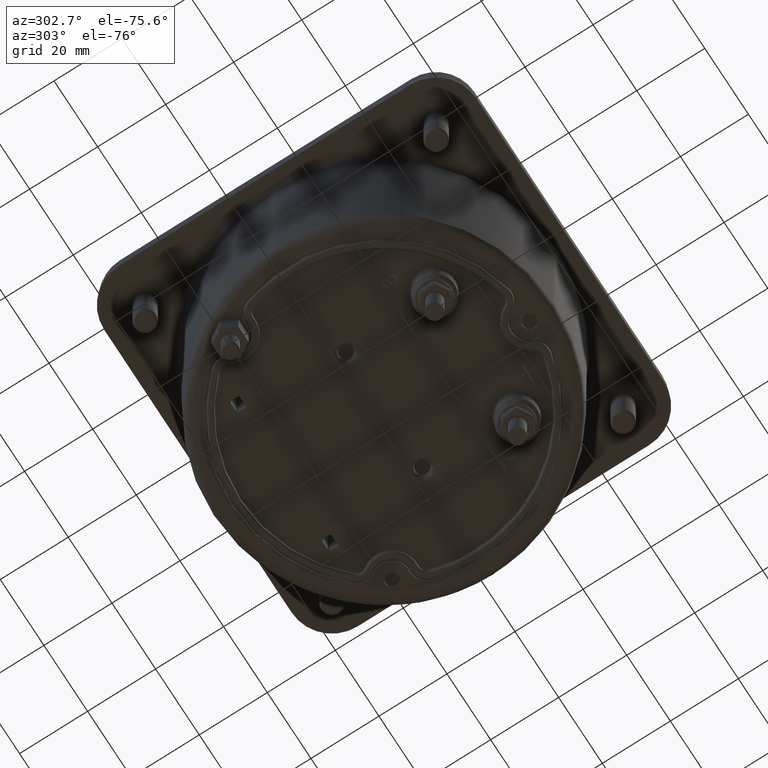
[diagram: clean part render]
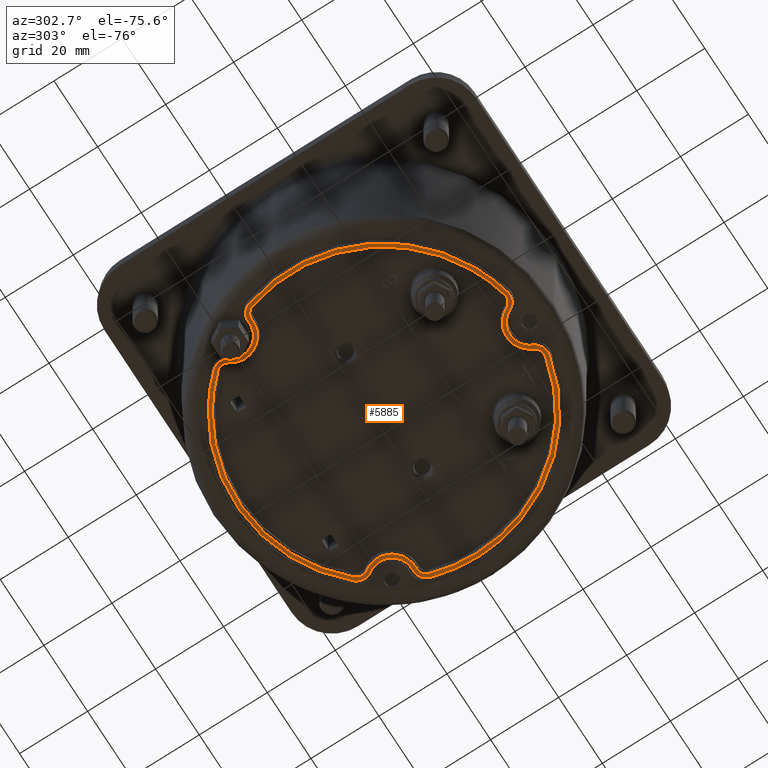
[diagram: same view with one face highlighted and labeled with its STEP entity id]
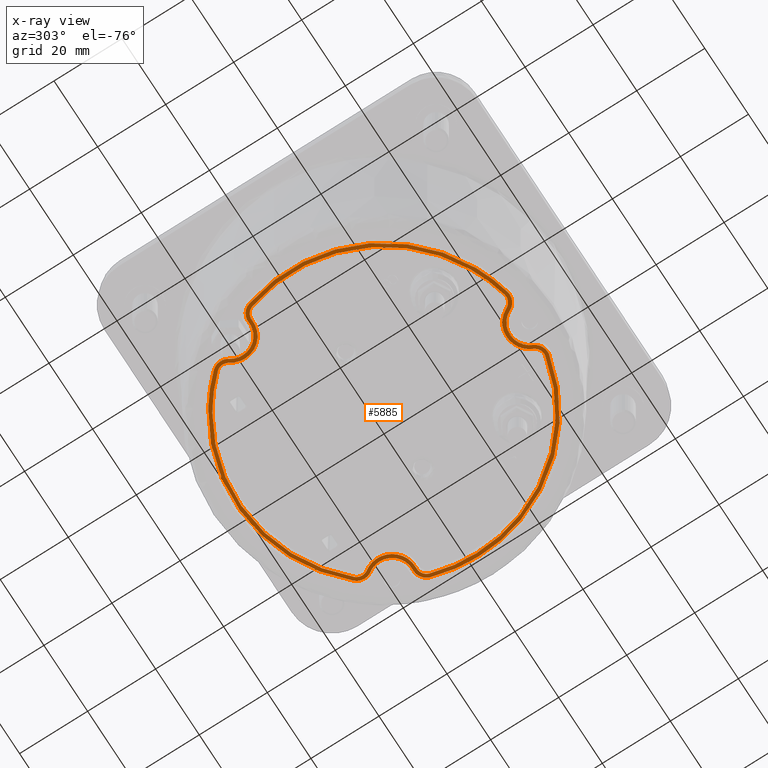
[diagram: x-ray of the same camera — body ghosted, the highlighted face saturated]
A machine part, auxiliary view. The second image highlights one B-rep face of the part: STEP entity #5885.
The next image is the same camera in x-ray: the body ghosted, the highlighted face saturated — about 0% of this face is hidden behind the body in this view.
In plain terms, the highlighted planar face has unit normal (0, 0, -1).
Its self-contained STEP definition (entity closure, byte-faithful):
#8 = CARTESIAN_POINT ( 'NONE',  ( -1.212138382838094941, 0.7438827149260273108, -0.1857952755905512010 ) ) ;
#18 = CARTESIAN_POINT ( 'NONE',  ( 1.673069710634333518, 2.013979365247369264E-09, -0.1857952755905511733 ) ) ;
#21 = CARTESIAN_POINT ( 'NONE',  ( 0.3187512870152073297, -1.632977043627348523, -0.1857952755905511733 ) ) ;
#22 = CARTESIAN_POINT ( 'NONE',  ( -0.8908873596493729341, 1.416680299401876120, -0.1857952755905511733 ) ) ;
#92 = ORIENTED_EDGE ( 'NONE', *, *, #14350, .T. ) ;
#121 = CARTESIAN_POINT ( 'NONE',  ( -0.4773040364726471863, -1.607606781611470970, -0.1857952755905511733 ) ) ;
#129 = EDGE_CURVE ( 'NONE', #16684, #1717, #10694, .T. ) ;
#233 = CARTESIAN_POINT ( 'NONE',  ( -1.596700230388248043, 0.4996690182229740484, -0.1857952755905511733 ) ) ;
#336 = CARTESIAN_POINT ( 'NONE',  ( -1.506121934639578219, -0.7374321891867212653, -0.1857952755905511733 ) ) ;
#445 = EDGE_CURVE ( 'NONE', #15866, #19550, #8831, .T. ) ;
#496 = EDGE_CURVE ( 'NONE', #1717, #10592, #4934, .T. ) ;
#507 = CARTESIAN_POINT ( 'NONE',  ( 0.9783321070305808220, 1.357203097241201473, -0.1857952755905512565 ) ) ;
#544 = CARTESIAN_POINT ( 'NONE',  ( -1.419687331303010280, 0.5787775305603403142, -0.1857952755905511733 ) ) ;
#558 = CARTESIAN_POINT ( 'NONE',  ( -1.542526307570755151, 0.5652419775322597983, -0.1857952755905511733 ) ) ;
#566 = CARTESIAN_POINT ( 'NONE',  ( -1.273294461990994053, 0.9732489825230236091, -0.1857952755905511733 ) ) ;
#574 = EDGE_CURVE ( 'NONE', #8524, #11640, #10427, .T. ) ;
#584 = CARTESIAN_POINT ( 'NONE',  ( 1.204083268777945914, 0.7674789497701508534, -0.1857952755905511733 ) ) ;
#585 = CARTESIAN_POINT ( 'NONE',  ( -0.2421005527674559010, -1.572329739916893843, -0.1857952755905511733 ) ) ;
#661 = CARTESIAN_POINT ( 'NONE',  ( 1.594891799073961502, 0.5054478889907558781, -0.1857952755905511455 ) ) ;
#671 = CARTESIAN_POINT ( 'NONE',  ( -1.565926202573117321, 0.5484839961584800916, -0.1857952755905511733 ) ) ;
#764 = CARTESIAN_POINT ( 'NONE',  ( -0.2636556485500809455, -1.602957257764374033, -0.1857952755905512010 ) ) ;
#773 = CARTESIAN_POINT ( 'NONE',  ( 1.552266007054555530, 0.6220040898913807847, -0.1857952755905511733 ) ) ;
#780 = CARTESIAN_POINT ( 'NONE',  ( 1.712782215769660388, 1.754808811820286145E-09, -0.1857952755905511733 ) ) ;
#802 = CARTESIAN_POINT ( 'NONE',  ( 1.290731773321938780, 0.9984748798086715560, -0.1857952755905511733 ) ) ;
#868 = ORIENTED_EDGE ( 'NONE', *, *, #5663, .F. ) ;
#878 = CARTESIAN_POINT ( 'NONE',  ( 1.586422051864071481, 0.5229335091216326115, -0.1857952755905512010 ) ) ;
#915 = CARTESIAN_POINT ( 'NONE',  ( 1.214664052769230063, 0.7369191280621916196, -0.1857952755905511733 ) ) ;
#922 = CARTESIAN_POINT ( 'NONE',  ( -0.1651103701694326131, -1.474474537336624369, -0.1857952755905512010 ) ) ;
#945 = CARTESIAN_POINT ( 'NONE',  ( -0.5353069825364256129, 1.947624175570978222, -0.1857952755905511733 ) ) ;
#960 = ORIENTED_EDGE ( 'NONE', *, *, #496, .T. ) ;
#1024 = B_SPLINE_CURVE_WITH_KNOTS ( 'NONE', 3,
 ( #14004, #20817, #7347, #5705, #3854, #15749, #4294, #17622, #19038, #558, #20939, #671, #2322, #10734, #14230, #19268, #17401, #2437, #10956, #9089 ),
 .UNSPECIFIED., .F., .F.,
 ( 4, 1, 1, 1, 2, 2, 2, 1, 1, 1, 2, 2, 4 ),
 ( 0.000000000000000000, 0.1249999999999875377, 0.1874999999999812927, 0.2187499999999781841, 0.2343749999999792666, 0.2499999999999803491, 0.5000000000000118794, 0.6250000000000254241, 0.6875000000000317524, 0.7187500000000331957, 0.7343750000000321965, 0.7500000000000310862, 1.000000000000000000 ),
 .UNSPECIFIED. ) ;
#1042 = EDGE_CURVE ( 'NONE', #10592, #5279, #9872, .T. ) ;
#1060 = CARTESIAN_POINT ( 'NONE',  ( -1.249480165767911766, 1.105702898367087572, -0.1857952755905511455 ) ) ;
#1109 = CARTESIAN_POINT ( 'NONE',  ( -1.273294461990994053, 0.9732489825230236091, -0.1857952755905511733 ) ) ;
#1164 = EDGE_CURVE ( 'NONE', #19025, #8524, #1024, .T. ) ;
#1169 = CARTESIAN_POINT ( 'NONE',  ( -1.260334288773014455, 1.059654878445901671, -0.1857952755905512010 ) ) ;
#1239 = CARTESIAN_POINT ( 'NONE',  ( 1.273952345549408616, -1.084844897535840236, -0.1857952755905511455 ) ) ;
#1257 = CARTESIAN_POINT ( 'NONE',  ( 1.254858259959258815, 1.092886825560725805, -0.1857952755905511733 ) ) ;
#1264 = CARTESIAN_POINT ( 'NONE',  ( -1.235176611692205606, 1.128492869790130415, -0.1857952755905512010 ) ) ;
#1340 = CARTESIAN_POINT ( 'NONE',  ( -1.271385504858130844, 0.6540275797175011396, -0.1857952755905512010 ) ) ;
#1346 = CARTESIAN_POINT ( 'NONE',  ( 0.6850431011858633124, -1.526426373634927947, -0.1857952755905511455 ) ) ;
#1360 = VERTEX_POINT ( 'NONE', #12012 ) ;
#1433 = CARTESIAN_POINT ( 'NONE',  ( 1.260154940884068875, 1.058415339648800302, -0.1857952755905511733 ) ) ;
#1455 = CARTESIAN_POINT ( 'NONE',  ( -1.068338551813055481, 1.292622531257842988, -0.1857952755905512010 ) ) ;
#1474 = CARTESIAN_POINT ( 'NONE',  ( -1.252626176206370179, 1.016614224764398111, -0.1857952755905511733 ) ) ;
#1506 = CARTESIAN_POINT ( 'NONE',  ( 1.273294460724539556, 0.9732489841799212282, -0.1857952755905511733 ) ) ;
#1551 = CARTESIAN_POINT ( 'NONE',  ( 1.507659316920857195, -0.7313171360254169251, -0.1857952755905511733 ) ) ;
#1558 = CARTESIAN_POINT ( 'NONE',  ( -0.3152105720081707640, 1.643124023554313640, -0.1857952755905512010 ) ) ;
#1657 = CARTESIAN_POINT ( 'NONE',  ( -1.195307636325648293, 0.8036609017806325417, -0.1857952755905511455 ) ) ;
#1666 = CARTESIAN_POINT ( 'NONE',  ( -0.6961907384253770426, -1.521332541816101891, -0.1857952755905511733 ) ) ;
#1676 = CARTESIAN_POINT ( 'NONE',  ( 0.2817492419569082029, -1.618487957128188270, -0.1857952755905511177 ) ) ;
#1714 = ORIENTED_EDGE ( 'NONE', *, *, #21640, .F. ) ;
#1717 = VERTEX_POINT ( 'NONE', #18656 ) ;
#1767 = CARTESIAN_POINT ( 'NONE',  ( -1.232070262477411138, 0.7031972826793306819, -0.1857952755905511733 ) ) ;
#1774 = CARTESIAN_POINT ( 'NONE',  ( -0.5852746736635264790, -1.571519591342059652, -0.1857952755905511733 ) ) ;
#1782 = CARTESIAN_POINT ( 'NONE',  ( -1.231076179933523695, 1.132948451031234205, -0.1857952755905511733 ) ) ;
#1866 = CARTESIAN_POINT ( 'NONE',  ( -0.3350828145244779677, -1.635106147065805038, -0.1857952755905511455 ) ) ;
#1879 = CARTESIAN_POINT ( 'NONE',  ( -1.281653432964439343, -1.075573483700538402, -0.1857952755905512010 ) ) ;
#1888 = CARTESIAN_POINT ( 'NONE',  ( 0.2555048254857112400, -1.593944616614153764, -0.1857952755905511177 ) ) ;
#2035 = ORIENTED_EDGE ( 'NONE', *, *, #19520, .F. ) ;
#2233 = CARTESIAN_POINT ( 'NONE',  ( 1.412091478376472864, 0.5801127139217358009, -0.1857952755905511733 ) ) ;
#2313 = CARTESIAN_POINT ( 'NONE',  ( 1.634599953811866069, 0.5115293041817724484, -0.1857952755905511733 ) ) ;
#2322 = CARTESIAN_POINT ( 'NONE',  ( -1.573575247085625239, 0.5404418097696118695, -0.1857952755905512010 ) ) ;
#2352 = CARTESIAN_POINT ( 'NONE',  ( 1.206394530155620037, 0.9268507384904139945, -0.1857952755905511455 ) ) ;
#2419 = CARTESIAN_POINT ( 'NONE',  ( -0.2647960972524502354, -1.604084621332544147, -0.1857952755905511733 ) ) ;
#2437 = CARTESIAN_POINT ( 'NONE',  ( -1.587697393784962996, 0.5219154501565996807, -0.1857952755905511455 ) ) ;
#2443 = CARTESIAN_POINT ( 'NONE',  ( -1.246729923338553148, 0.9348190768901974979, -0.1857952755905511733 ) ) ;
#2573 = CARTESIAN_POINT ( 'NONE',  ( 0.2179712237193843216, -1.529305845407193054, -0.1857952755905511455 ) ) ;
#2580 = CARTESIAN_POINT ( 'NONE',  ( -1.194171432581691672, 0.8711312749444513059, -0.1857952755905512010 ) ) ;
#2628 = PLANE ( 'NONE',  #5833 ) ;
#2682 = CARTESIAN_POINT ( 'NONE',  ( 1.193849201815152750, 0.8673040789136445827, -0.1857952755905512010 ) ) ;
#2689 = CARTESIAN_POINT ( 'NONE',  ( 0.07010944451321922399, -1.428452585711672773, -0.1857952755905511177 ) ) ;
#2708 = CARTESIAN_POINT ( 'NONE',  ( 1.231076178459254100, 1.132948452633194991, -0.1857952755905511733 ) ) ;
#2715 = B_SPLINE_CURVE_WITH_KNOTS ( 'NONE', 3,
 ( #4018, #5433, #18776, #7297, #3802, #10464, #10682, #15480, #507, #13955, #20653, #19840, #20054, #16437, #10091, #12655, #3205, #13256, #11409, #3311, #5069, #14893, #16536, #18085, #11728, #1558, #17688, #3424, #19944, #19334, #14290, #11512, #6716, #22, #4966, #14400, #11618, #18395, #13366, #1455, #21113, #1782 ),
 .UNSPECIFIED., .F., .F.,
 ( 4, 1, 1, 1, 1, 2, 2, 2, 1, 1, 1, 1, 2, 2, 2, 1, 1, 1, 1, 2, 2, 2, 1, 1, 1, 1, 2, 2, 4 ),
 ( 0.000000000000000000, 0.06250000000000069389, 0.09375000000000088818, 0.1093750000000009853, 0.1171875000000010408, 0.1210937500000009992, 0.1250000000000009437, 0.2500000000000018874, 0.3125000000000024425, 0.3437500000000027200, 0.3593750000000028866, 0.3671875000000029421, 0.3710937500000030531, 0.3750000000000031641, 0.5000000000000045519, 0.5625000000000053291, 0.5937500000000056621, 0.6093750000000058842, 0.6171875000000059952, 0.6210937500000059952, 0.6250000000000059952, 0.7500000000000039968, 0.8125000000000029976, 0.8437500000000024425, 0.8593750000000022204, 0.8671875000000022204, 0.8710937500000023315, 0.8750000000000024425, 1.000000000000000000 ),
 .UNSPECIFIED. ) ;
#2746 = FACE_BOUND ( 'NONE', #3142, .T. ) ;
#2783 = EDGE_CURVE ( 'NONE', #6996, #7682, #20141, .T. ) ;
#2796 = CARTESIAN_POINT ( 'NONE',  ( -0.2421005527674559010, -1.572329739916893843, -0.1857952755905511733 ) ) ;
#2809 = ORIENTED_EDGE ( 'NONE', *, *, #1164, .T. ) ;
#2894 = CARTESIAN_POINT ( 'NONE',  ( 1.604557261543605451, -0.4746376863211690389, -0.1857952755905511733 ) ) ;
#2991 = VERTEX_POINT ( 'NONE', #20610 ) ;
#2995 = CARTESIAN_POINT ( 'NONE',  ( 1.363586036612314256, -0.9705659333770184638, -0.1857952755905511733 ) ) ;
#3014 =( BOUNDED_CURVE ( )  B_SPLINE_CURVE ( 3, ( #13114, #21665, #9936, #11374 ),
 .UNSPECIFIED., .F., .T. ) 
 B_SPLINE_CURVE_WITH_KNOTS ( ( 4, 4 ),
 ( 0.4484384710969827048, 1.000000000000000000 ),
 .UNSPECIFIED. ) 
 CURVE ( )  GEOMETRIC_REPRESENTATION_ITEM ( )  RATIONAL_B_SPLINE_CURVE ( ( 1.000000000000000000, 0.9544120172335112118, 0.9544120172335112118, 1.000000000000000000 ) ) 
 REPRESENTATION_ITEM ( '' )  );
#3122 = VERTEX_POINT ( 'NONE', #11715 ) ;
#3142 = EDGE_LOOP ( 'NONE', ( #19495, #21637, #960, #16655, #14248, #20980, #16995, #11411, #92, #6140, #15995, #9168, #2809, #18536, #7935 ) ) ;
#3186 = CARTESIAN_POINT ( 'NONE',  ( -0.3403373225423999560, -1.635348552598971050, -0.1857952755905511733 ) ) ;
#3196 = CARTESIAN_POINT ( 'NONE',  ( 0.7818525144544127281, -1.480488387513629878, -0.1857952755905511177 ) ) ;
#3205 = CARTESIAN_POINT ( 'NONE',  ( 0.3540400370078276016, 1.635173152223877491, -0.1857952755905512010 ) ) ;
#3295 = EDGE_CURVE ( 'NONE', #7682, #5573, #7418, .T. ) ;
#3304 = CARTESIAN_POINT ( 'NONE',  ( -0.8706394336202856188, -1.430783596716403538, -0.1857952755905511733 ) ) ;
#3311 = CARTESIAN_POINT ( 'NONE',  ( 0.2277000552141509038, 1.661436554757110606, -0.1857952755905512010 ) ) ;
#3363 = CARTESIAN_POINT ( 'NONE',  ( 1.712769464212779535, 0.1738189873386000173, -0.1857952755905511733 ) ) ;
#3413 = CARTESIAN_POINT ( 'NONE',  ( -1.253602016339460334, -1.107978174057604237, -0.1857952755905511455 ) ) ;
#3423 = CARTESIAN_POINT ( 'NONE',  ( 0.3079620270442662289, -1.630373869959278688, -0.1857952755905511733 ) ) ;
#3424 = CARTESIAN_POINT ( 'NONE',  ( -0.3327362374033293602, 1.639640279414182888, -0.1857952755905511733 ) ) ;
#3519 = CARTESIAN_POINT ( 'NONE',  ( -1.552696290802787260, -0.6335242451205050918, -0.1857952755905512010 ) ) ;
#3528 = CARTESIAN_POINT ( 'NONE',  ( 0.2421005548134645413, -1.572329739601858511, -0.1857952755905511733 ) ) ;
#3629 = CARTESIAN_POINT ( 'NONE',  ( -1.664538413821067930, 0.1686589094060051419, -0.1857952755905511455 ) ) ;
#3686 = CARTESIAN_POINT ( 'NONE',  ( 1.712769465058641360, -0.8360640880031019462, -0.1857952755905511177 ) ) ;
#3693 = EDGE_CURVE ( 'NONE', #19383, #9493, #5771, .T. ) ;
#3699 =( BOUNDED_CURVE ( )  B_SPLINE_CURVE ( 3, ( #16215, #802, #7477, #4315 ),
 .UNSPECIFIED., .F., .T. ) 
 B_SPLINE_CURVE_WITH_KNOTS ( ( 4, 4 ),
 ( 0.000000000000000000, 0.4484384710969827048 ),
 .UNSPECIFIED. ) 
 CURVE ( )  GEOMETRIC_REPRESENTATION_ITEM ( )  RATIONAL_B_SPLINE_CURVE ( ( 1.000000000000000000, 0.9697469813313791542, 0.9697469813313791542, 1.000000000000000000 ) ) 
 REPRESENTATION_ITEM ( '' )  );
#3802 = CARTESIAN_POINT ( 'NONE',  ( 1.015620187991960188, 1.329665077833817932, -0.1857952755905511455 ) ) ;
#3854 = CARTESIAN_POINT ( 'NONE',  ( -1.513319101973404024, 0.5747300981531184849, -0.1857952755905511455 ) ) ;
#3880 = CARTESIAN_POINT ( 'NONE',  ( 1.470353348150764239, 0.5754922723418959274, -0.1857952755905512010 ) ) ;
#3980 = CARTESIAN_POINT ( 'NONE',  ( -1.479505574869476536, 0.6160808573955000034, -0.1857952755905511733 ) ) ;
#4018 = CARTESIAN_POINT ( 'NONE',  ( 1.231076178459254100, 1.132948452633194991, -0.1857952755905511733 ) ) ;
#4096 = CARTESIAN_POINT ( 'NONE',  ( 1.215432100419090222, 0.9534215397387416635, -0.1857952755905511733 ) ) ;
#4103 = CARTESIAN_POINT ( 'NONE',  ( 0.1940282442080205061, -1.502247353253822970, -0.1857952755905511177 ) ) ;
#4202 = CARTESIAN_POINT ( 'NONE',  ( 0.4567336898016070013, -1.612213502649650243, -0.1857952755905512010 ) ) ;
#4208 = CARTESIAN_POINT ( 'NONE',  ( -0.07459245935843676623, -1.429710266375091576, -0.1857952755905511733 ) ) ;
#4279 = CARTESIAN_POINT ( 'NONE',  ( 1.519206317941365070, 0.5733618797903282660, -0.1857952755905511733 ) ) ;
#4294 = CARTESIAN_POINT ( 'NONE',  ( -1.517001733253800166, 0.5739076599612574769, -0.1857952755905512010 ) ) ;
#4315 = CARTESIAN_POINT ( 'NONE',  ( 1.299868735836570366, 1.058415343096606565, -0.1857952755905511733 ) ) ;
#4317 = CARTESIAN_POINT ( 'NONE',  ( 1.256539779737106732, 0.6686312151383690949, -0.1857952755905512010 ) ) ;
#4324 = CARTESIAN_POINT ( 'NONE',  ( 0.1541827642372826934, -1.467555776516317856, -0.1857952755905511455 ) ) ;
#4332 = CARTESIAN_POINT ( 'NONE',  ( -1.198378598798916395, 0.8982363825971036997, -0.1857952755905512010 ) ) ;
#4355 = CARTESIAN_POINT ( 'NONE',  ( -0.3030659991436338574, -1.687323147316580396, -0.1857952755905511733 ) ) ;
#4427 = CARTESIAN_POINT ( 'NONE',  ( 1.550641990089226541, -0.6360716831552908346, -0.1857952755905511733 ) ) ;
#4436 = CARTESIAN_POINT ( 'NONE',  ( -0.04921827179464315083, -1.422510977686919587, -0.1857952755905512010 ) ) ;
#4501 = CARTESIAN_POINT ( 'NONE',  ( -0.3743026047043496174, -1.671369737116831011, -0.1857952755905511733 ) ) ;
#4507 = EDGE_CURVE ( 'NONE', #12424, #6996, #3014, .T. ) ;
#4543 = CARTESIAN_POINT ( 'NONE',  ( 1.594761313673757286, -0.5058886230825975217, -0.1857952755905512010 ) ) ;
#4568 = CARTESIAN_POINT ( 'NONE',  ( -1.248502053980789617, 1.107743303282752612, -0.1857952755905511455 ) ) ;
#4641 = CARTESIAN_POINT ( 'NONE',  ( 1.673083884310647695, -0.04745359089395446983, -0.1857952755905511733 ) ) ;
#4659 = CARTESIAN_POINT ( 'NONE',  ( 1.235590205358274574, 1.128043453671065066, -0.1857952755905511733 ) ) ;
#4666 = CARTESIAN_POINT ( 'NONE',  ( -1.258542854557438195, 1.039145401946201641, -0.1857952755905511455 ) ) ;
#4732 = CARTESIAN_POINT ( 'NONE',  ( -1.200032882658406352, 0.7829228703460843208, -0.1857952755905511733 ) ) ;
#4835 = CARTESIAN_POINT ( 'NONE',  ( 1.257943459600570524, 1.035707933465534580, -0.1857952755905511455 ) ) ;
#4850 = CARTESIAN_POINT ( 'NONE',  ( -1.596700230388248043, 0.4996690182229740484, -0.1857952755905511733 ) ) ;
#4855 = CARTESIAN_POINT ( 'NONE',  ( 0.2589286856666419556, -1.597937835417917674, -0.1857952755905511733 ) ) ;
#4896 = VERTEX_POINT ( 'NONE', #20317 ) ;
#4934 = B_SPLINE_CURVE_WITH_KNOTS ( 'NONE', 3,
 ( #20843, #4202, #7591, #14251, #19525, #1346, #17974, #3196, #8225, #6067, #12843, #13140, #12728, #8123, #8019, #16217, #14671, #9550, #1239, #19404, #2995, #11501, #7917, #1551, #4427, #9856, #16529, #14775, #14882, #4543, #2894, #7815, #17763, #21481, #16326, #19723, #4641, #14574 ),
 .UNSPECIFIED., .F., .F.,
 ( 4, 1, 2, 2, 1, 2, 2, 1, 1, 2, 2, 1, 1, 2, 2, 1, 2, 2, 1, 1, 1, 2, 2, 4 ),
 ( 0.000000000000000000, 0.1019885293935939713, 0.1147370955677932958, 0.1274856617419926619, 0.1529827940903910610, 0.2039770587871877205, 0.2549713234839843801, 0.3059655881807810673, 0.3569598528775777546, 0.3697084190517768709, 0.3760827021388766234, 0.3824569852259763203, 0.4079541175743749970, 0.4589483822711724614, 0.5099426469679698704, 0.6119311763615647992, 0.6246797425357643041, 0.6278668840793141248, 0.6310540256228640565, 0.6374283087099639200, 0.6629254410583633739, 0.7139197057551621706, 0.7649139704519609673, 0.8159082351487597640 ),
 .UNSPECIFIED. ) ;
#4948 = CARTESIAN_POINT ( 'NONE',  ( -1.253293055161151415, 0.6740546168990640963, -0.1857952755905512010 ) ) ;
#4966 = CARTESIAN_POINT ( 'NONE',  ( -0.9334547241698135656, 1.388586869988793104, -0.1857952755905511455 ) ) ;
#5062 = CARTESIAN_POINT ( 'NONE',  ( -1.659333829924849679, 0.2147203444811970341, -0.1857952755905511177 ) ) ;
#5069 = CARTESIAN_POINT ( 'NONE',  ( 0.1144259579234575552, 1.673055951187975232, -0.1857952755905512010 ) ) ;
#5159 = CARTESIAN_POINT ( 'NONE',  ( -1.207329021775144895, 0.7565140437473839574, -0.1857952755905511177 ) ) ;
#5172 = CARTESIAN_POINT ( 'NONE',  ( 0.2491905228745409651, -1.585591217595017755, -0.1857952755905511733 ) ) ;
#5265 = CARTESIAN_POINT ( 'NONE',  ( -1.656489336612542829, -0.2420436422618491012, -0.1857952755905512010 ) ) ;
#5279 = VERTEX_POINT ( 'NONE', #13252 ) ;
#5321 = CARTESIAN_POINT ( 'NONE',  ( 1.634599953811866069, 0.5115293041817724484, -0.1857952755905511733 ) ) ;
#5372 = CARTESIAN_POINT ( 'NONE',  ( -1.664182127207769701, 0.1721380003948280168, -0.1857952755905511733 ) ) ;
#5433 = CARTESIAN_POINT ( 'NONE',  ( 1.192330906000578006, 1.175049557799034305, -0.1857952755905511455 ) ) ;
#5573 = VERTEX_POINT ( 'NONE', #11278 ) ;
#5576 = CARTESIAN_POINT ( 'NONE',  ( -0.2541006563912307503, -1.593113202421892138, -0.1857952755905511733 ) ) ;
#5584 = ORIENTED_EDGE ( 'NONE', *, *, #14853, .F. ) ;
#5663 = EDGE_CURVE ( 'NONE', #6976, #4896, #5955, .T. ) ;
#5697 = CARTESIAN_POINT ( 'NONE',  ( 1.479505574067791374, 0.6160808593207323103, -0.1857952755905511733 ) ) ;
#5705 = CARTESIAN_POINT ( 'NONE',  ( -1.508148942955909844, 0.5756986386469193917, -0.1857952755905511733 ) ) ;
#5715 = ORIENTED_EDGE ( 'NONE', *, *, #7390, .F. ) ;
#5729 = CARTESIAN_POINT ( 'NONE',  ( 1.282594443433682230, 0.6436093731963880016, -0.1857952755905511733 ) ) ;
#5771 = B_SPLINE_CURVE_WITH_KNOTS ( 'NONE', 3,
 ( #16026, #1264, #9469, #9783, #4568, #1060, #13068, #19747, #16133, #16453, #1169, #19647, #4666, #11324, #7731, #12968, #6509, #1474, #21505, #8147 ),
 .UNSPECIFIED., .F., .F.,
 ( 4, 1, 1, 1, 2, 2, 2, 1, 1, 1, 2, 2, 4 ),
 ( 0.000000000000000000, 0.1250000000000205391, 0.1875000000000320022, 0.2187500000000364708, 0.2343750000000374145, 0.2500000000000383582, 0.5000000000000233147, 0.6250000000000158762, 0.6875000000000134337, 0.7187500000000123235, 0.7343750000000116573, 0.7500000000000109912, 1.000000000000000000 ),
 .UNSPECIFIED. ) ;
#5812 =( BOUNDED_CURVE ( )  B_SPLINE_CURVE ( 3, ( #14358, #10644, #9115, #7480 ),
 .UNSPECIFIED., .F., .T. ) 
 B_SPLINE_CURVE_WITH_KNOTS ( ( 4, 4 ),
 ( 0.000000000000000000, 1.000000000000000000 ),
 .UNSPECIFIED. ) 
 CURVE ( )  GEOMETRIC_REPRESENTATION_ITEM ( )  RATIONAL_B_SPLINE_CURVE ( ( 1.000000000000000000, 0.8540669509918770164, 0.8540669509918770164, 1.000000000000000000 ) ) 
 REPRESENTATION_ITEM ( '' )  );
#5833 = AXIS2_PLACEMENT_3D ( 'NONE', #20908, #7423, #16058 ) ;
#5843 = CARTESIAN_POINT ( 'NONE',  ( 1.207264002824851579, 0.7571502576288658970, -0.1857952755905511733 ) ) ;
#5848 = CARTESIAN_POINT ( 'NONE',  ( -0.2026843173011506349, -1.511835487618447882, -0.1857952755905512010 ) ) ;
#5859 = CARTESIAN_POINT ( 'NONE',  ( -1.210112539617913985, 0.9374985443895005321, -0.1857952755905512010 ) ) ;
#5885 = ADVANCED_FACE ( 'NONE', ( #2746, #7313 ), #2628, .T. ) ;
#5920 = CARTESIAN_POINT ( 'NONE',  ( 1.529197743589675085, 0.5703573828251706779, -0.1857952755905511455 ) ) ;
#5955 =( BOUNDED_CURVE ( )  B_SPLINE_CURVE ( 3, ( #6893, #17142, #10376, #7099 ),
 .UNSPECIFIED., .F., .T. ) 
 B_SPLINE_CURVE_WITH_KNOTS ( ( 4, 4 ),
 ( 0.000000000000000000, 1.000000000000000000 ),
 .UNSPECIFIED. ) 
 CURVE ( )  GEOMETRIC_REPRESENTATION_ITEM ( )  RATIONAL_B_SPLINE_CURVE ( ( 1.000000000000000000, 0.6187220439517726600, 0.6187220439517726600, 1.000000000000000000 ) ) 
 REPRESENTATION_ITEM ( '' )  );
#5959 = CARTESIAN_POINT ( 'NONE',  ( 1.359487591651526772, 0.5942474936734483126, -0.1857952755905511733 ) ) ;
#5965 = CARTESIAN_POINT ( 'NONE',  ( -0.2056533296094158747, -1.515330201386318576, -0.1857952755905511733 ) ) ;
#5982 = EDGE_CURVE ( 'NONE', #17192, #20299, #19229, .T. ) ;
#6067 = CARTESIAN_POINT ( 'NONE',  ( 0.9244319543426461339, -1.395295079669011340, -0.1857952755905512010 ) ) ;
#6074 = CARTESIAN_POINT ( 'NONE',  ( -0.02482419965020857960, -1.419122149180021442, -0.1857952755905511733 ) ) ;
#6140 = ORIENTED_EDGE ( 'NONE', *, *, #3693, .T. ) ;
#6186 = CARTESIAN_POINT ( 'NONE',  ( 0.1994790199712033196, -1.508193679346525817, -0.1857952755905511733 ) ) ;
#6240 = CARTESIAN_POINT ( 'NONE',  ( 1.479505574067791374, 0.6160808593207323103, -0.1857952755905511733 ) ) ;
#6270 = VERTEX_POINT ( 'NONE', #21582 ) ;
#6377 = CARTESIAN_POINT ( 'NONE',  ( -1.412987411492303114, 0.5799420721436174819, -0.1857952755905511733 ) ) ;
#6423 = EDGE_CURVE ( 'NONE', #5279, #15866, #19270, .T. ) ;
#6509 = CARTESIAN_POINT ( 'NONE',  ( -1.256149112430691162, 1.028990325031845288, -0.1857952755905511733 ) ) ;
#6706 = CARTESIAN_POINT ( 'NONE',  ( -1.642378411035688712, -0.3282497204415930070, -0.1857952755905511455 ) ) ;
#6711 = CARTESIAN_POINT ( 'NONE',  ( 1.673080516222775316, 0.04282744407487128202, -0.1857952755905511455 ) ) ;
#6715 = CARTESIAN_POINT ( 'NONE',  ( 0.3242489668455377227, -1.633929166386456577, -0.1857952755905512010 ) ) ;
#6716 = CARTESIAN_POINT ( 'NONE',  ( -0.8037752252587270219, 1.469387665413111055, -0.1857952755905511733 ) ) ;
#6748 = ORIENTED_EDGE ( 'NONE', *, *, #5982, .F. ) ;
#6805 = CARTESIAN_POINT ( 'NONE',  ( 1.673069710634333518, 2.013979365247369264E-09, -0.1857952755905511733 ) ) ;
#6831 = CARTESIAN_POINT ( 'NONE',  ( -1.240627221510084643, 0.9958300989253170421, -0.1857952755905511733 ) ) ;
#6893 = CARTESIAN_POINT ( 'NONE',  ( -0.2062111120768039541, -1.589329841843751812, -0.1857952755905511733 ) ) ;
#6976 = VERTEX_POINT ( 'NONE', #10238 ) ;
#6996 = VERTEX_POINT ( 'NONE', #13405 ) ;
#7083 = ORIENTED_EDGE ( 'NONE', *, *, #3295, .F. ) ;
#7099 = CARTESIAN_POINT ( 'NONE',  ( 0.2062111141449326779, -1.589329841575417124, -0.1857952755905511733 ) ) ;
#7110 = CARTESIAN_POINT ( 'NONE',  ( -0.2665219201383939862, -1.605754506581359653, -0.1857952755905511733 ) ) ;
#7213 =( BOUNDED_CURVE ( )  B_SPLINE_CURVE ( 3, ( #14415, #18123, #19774, #11250 ),
 .UNSPECIFIED., .F., .T. ) 
 B_SPLINE_CURVE_WITH_KNOTS ( ( 4, 4 ),
 ( 0.000000000000000000, 1.000000000000000000 ),
 .UNSPECIFIED. ) 
 CURVE ( )  GEOMETRIC_REPRESENTATION_ITEM ( )  RATIONAL_B_SPLINE_CURVE ( ( 1.000000000000000000, 0.8540669509918741298, 0.8540669509918741298, 1.000000000000000000 ) ) 
 REPRESENTATION_ITEM ( '' )  );
#7265 = CARTESIAN_POINT ( 'NONE',  ( 1.201644476830682651, 0.7763821916983637550, -0.1857952755905511733 ) ) ;
#7276 = CARTESIAN_POINT ( 'NONE',  ( -1.193107668267304744, 0.8572797090338366566, -0.1857952755905512010 ) ) ;
#7297 = CARTESIAN_POINT ( 'NONE',  ( 1.055030074474337276, 1.299040553568051592, -0.1857952755905511455 ) ) ;
#7313 = FACE_OUTER_BOUND ( 'NONE', #13382, .T. ) ;
#7334 = CARTESIAN_POINT ( 'NONE',  ( 1.581441101760273860, 0.5304680719339032180, -0.1857952755905512565 ) ) ;
#7347 = CARTESIAN_POINT ( 'NONE',  ( -1.497757535891723890, 0.5769902856057987917, -0.1857952755905511733 ) ) ;
#7390 = EDGE_CURVE ( 'NONE', #12403, #6270, #21608, .T. ) ;
#7418 =( BOUNDED_CURVE ( )  B_SPLINE_CURVE ( 3, ( #9185, #14540, #15847, #1109 ),
 .UNSPECIFIED., .F., .T. ) 
 B_SPLINE_CURVE_WITH_KNOTS ( ( 4, 4 ),
 ( 0.000000000000000000, 1.000000000000000000 ),
 .UNSPECIFIED. ) 
 CURVE ( )  GEOMETRIC_REPRESENTATION_ITEM ( )  RATIONAL_B_SPLINE_CURVE ( ( 1.000000000000000000, 0.8540669509918743518, 0.8540669509918743518, 1.000000000000000000 ) ) 
 REPRESENTATION_ITEM ( '' )  );
#7423 = DIRECTION ( 'NONE',  ( 0.000000000000000000, 0.000000000000000000, -1.000000000000000000 ) ) ;
#7433 = CARTESIAN_POINT ( 'NONE',  ( -0.3048422437936514351, -1.629758888553624718, -0.1857952755905511455 ) ) ;
#7474 = EDGE_CURVE ( 'NONE', #20299, #12424, #3699, .T. ) ;
#7477 = CARTESIAN_POINT ( 'NONE',  ( 1.299864885529654401, 1.027749304521950346, -0.1857952755905511733 ) ) ;
#7480 = CARTESIAN_POINT ( 'NONE',  ( 0.3743026068792342231, -1.671369736629767733, -0.1857952755905511733 ) ) ;
#7484 = CARTESIAN_POINT ( 'NONE',  ( 0.1973099770893180505, -1.505801890756681027, -0.1857952755905511455 ) ) ;
#7591 = CARTESIAN_POINT ( 'NONE',  ( 0.5564641093243534176, -1.580961373165727935, -0.1857952755905512010 ) ) ;
#7636 = CARTESIAN_POINT ( 'NONE',  ( 0.3282175916615503453, -1.634467804326920959, -0.1857952755905512010 ) ) ;
#7682 = VERTEX_POINT ( 'NONE', #10187 ) ;
#7699 = CARTESIAN_POINT ( 'NONE',  ( 1.451862061890342392, 0.5752619604963328248, -0.1857952755905512010 ) ) ;
#7731 = CARTESIAN_POINT ( 'NONE',  ( -1.256779983267686918, 1.031362457709921632, -0.1857952755905511455 ) ) ;
#7733 = EDGE_CURVE ( 'NONE', #6270, #2991, #7213, .T. ) ;
#7776 = CARTESIAN_POINT ( 'NONE',  ( -1.419038521800979558, -1.437401533485225924, -0.1857952755905511733 ) ) ;
#7815 = CARTESIAN_POINT ( 'NONE',  ( 1.625697511880493717, -0.4003304551569473180, -0.1857952755905512010 ) ) ;
#7821 = CARTESIAN_POINT ( 'NONE',  ( 0.05207935617727221800, -1.424096424335441924, -0.1857952755905511733 ) ) ;
#7904 = VERTEX_POINT ( 'NONE', #16790 ) ;
#7917 = CARTESIAN_POINT ( 'NONE',  ( 1.439711198413357707, -0.8535284126442814756, -0.1857952755905511455 ) ) ;
#7935 = ORIENTED_EDGE ( 'NONE', *, *, #20892, .T. ) ;
#8013 = CARTESIAN_POINT ( 'NONE',  ( -1.356837502949582053, 0.5965019398320928756, -0.1857952755905511455 ) ) ;
#8019 = CARTESIAN_POINT ( 'NONE',  ( 1.230912563105602597, -1.133190960375785039, -0.1857952755905512010 ) ) ;
#8039 = VERTEX_POINT ( 'NONE', #16028 ) ;
#8123 = CARTESIAN_POINT ( 'NONE',  ( 1.190439453711793938, -1.176854937183597904, -0.1857952755905511733 ) ) ;
#8147 = CARTESIAN_POINT ( 'NONE',  ( -1.240627221510084643, 0.9958300989253170421, -0.1857952755905511733 ) ) ;
#8225 = CARTESIAN_POINT ( 'NONE',  ( 0.8438347890176443045, -1.445479802265978053, -0.1857952755905511733 ) ) ;
#8321 = ORIENTED_EDGE ( 'NONE', *, *, #12225, .F. ) ;
#8436 = CARTESIAN_POINT ( 'NONE',  ( -1.394611448361421369, 0.5837419782678691105, -0.1857952755905511733 ) ) ;
#8443 = CARTESIAN_POINT ( 'NONE',  ( -1.618093152842961180, -0.4271275067450996943, -0.1857952755905511733 ) ) ;
#8448 = CARTESIAN_POINT ( 'NONE',  ( 1.621869329959218620, 0.4192407638495324607, -0.1857952755905511733 ) ) ;
#8524 = VERTEX_POINT ( 'NONE', #4850 ) ;
#8549 = CARTESIAN_POINT ( 'NONE',  ( -1.258325056716959267, -1.102611859608015665, -0.1857952755905511733 ) ) ;
#8607 = CARTESIAN_POINT ( 'NONE',  ( 1.712782215769660388, 1.754808811820286145E-09, -0.1857952755905511733 ) ) ;
#8658 = CARTESIAN_POINT ( 'NONE',  ( -1.675771174410365383, -0.06769323267623413021, -0.1857952755905511177 ) ) ;
#8743 = CARTESIAN_POINT ( 'NONE',  ( -0.2472907240870154955, -1.583286871029934817, -0.1857952755905511733 ) ) ;
#8756 = CARTESIAN_POINT ( 'NONE',  ( -1.662272820984110444, 0.1899032954472586188, -0.1857952755905512010 ) ) ;
#8762 = CARTESIAN_POINT ( 'NONE',  ( 1.659575768924283157, 0.2130466369376975422, -0.1857952755905511455 ) ) ;
#8831 = B_SPLINE_CURVE_WITH_KNOTS ( 'NONE', 3,
 ( #12289, #3880, #7699, #17202, #21071, #10538, #2233, #19177, #15880, #5959, #14026, #20729, #12620, #5729, #9220, #8896, #12399, #4317, #15553, #17643, #915, #5843, #584, #9008, #10866, #7265, #19063, #13920, #2682, #20613, #9339, #10643, #17311, #2352, #17529, #4096, #20962, #15666 ),
 .UNSPECIFIED., .F., .F.,
 ( 4, 1, 1, 1, 2, 2, 2, 1, 1, 1, 2, 2, 2, 1, 1, 1, 2, 2, 2, 1, 1, 1, 2, 2, 4 ),
 ( 0.000000000000000000, 0.06249999999999923672, 0.09374999999999954203, 0.1093749999999990286, 0.1171874999999987371, 0.1249999999999984457, 0.2499999999999968359, 0.3124999999999960032, 0.3437499999999953926, 0.3593749999999951150, 0.3671874999999949485, 0.3749999999999948375, 0.4999999999999958922, 0.5624999999999968914, 0.5937499999999974465, 0.6093749999999976685, 0.6171874999999977796, 0.6249999999999978906, 0.7500000000000003331, 0.8125000000000016653, 0.8437500000000017764, 0.8593750000000018874, 0.8671875000000019984, 0.8750000000000019984, 1.000000000000000000 ),
 .UNSPECIFIED. ) ;
#8845 = ORIENTED_EDGE ( 'NONE', *, *, #14181, .F. ) ;
#8858 = VERTEX_POINT ( 'NONE', #780 ) ;
#8896 = CARTESIAN_POINT ( 'NONE',  ( 1.276679161667404694, 0.6490938232181100442, -0.1857952755905512010 ) ) ;
#8911 = CARTESIAN_POINT ( 'NONE',  ( -1.201919894674035927, 0.9132592025892880550, -0.1857952755905511733 ) ) ;
#8962 = CARTESIAN_POINT ( 'NONE',  ( 1.479505574067791374, 0.6160808593207323103, -0.1857952755905511733 ) ) ;
#8975 = CARTESIAN_POINT ( 'NONE',  ( 1.582306881907936891, 0.5292301158962482432, -0.1857952755905511455 ) ) ;
#9008 = CARTESIAN_POINT ( 'NONE',  ( 1.202831373670404602, 0.7719512022645484972, -0.1857952755905511733 ) ) ;
#9073 = CARTESIAN_POINT ( 'NONE',  ( -0.2421005527674559010, -1.572329739916893843, -0.1857952755905511733 ) ) ;
#9079 = CARTESIAN_POINT ( 'NONE',  ( 1.581028009293916625, 0.5310470275906737925, -0.1857952755905511733 ) ) ;
#9089 = CARTESIAN_POINT ( 'NONE',  ( -1.596700230388248043, 0.4996690182229740484, -0.1857952755905511733 ) ) ;
#9115 = CARTESIAN_POINT ( 'NONE',  ( 0.3030660013392763585, -1.687323146922212747, -0.1857952755905511733 ) ) ;
#9168 = ORIENTED_EDGE ( 'NONE', *, *, #10623, .T. ) ;
#9184 = CARTESIAN_POINT ( 'NONE',  ( 1.591517277107213690, 0.5137853742100511045, -0.1857952755905511733 ) ) ;
#9185 = CARTESIAN_POINT ( 'NONE',  ( -1.260297349107523557, 1.159840432935063115, -0.1857952755905511733 ) ) ;
#9220 = CARTESIAN_POINT ( 'NONE',  ( 1.279035119853162206, 0.6468859145451971715, -0.1857952755905512010 ) ) ;
#9227 = CARTESIAN_POINT ( 'NONE',  ( -0.2277395593245022387, -1.544980408636038582, -0.1857952755905511733 ) ) ;
#9241 = CARTESIAN_POINT ( 'NONE',  ( 1.256832559721688058, 1.086198065435437732, -0.1857952755905511455 ) ) ;
#9339 = CARTESIAN_POINT ( 'NONE',  ( 1.200915713952820374, 0.9083238680007681420, -0.1857952755905512010 ) ) ;
#9344 = CARTESIAN_POINT ( 'NONE',  ( 0.2005979362055710924, -1.509450661312722319, -0.1857952755905511455 ) ) ;
#9444 = CARTESIAN_POINT ( 'NONE',  ( -0.1153588443431137894, -1.444616069749258269, -0.1857952755905511733 ) ) ;
#9464 = CARTESIAN_POINT ( 'NONE',  ( -1.260297349107523557, 1.159840432935063115, -0.1857952755905511733 ) ) ;
#9469 = CARTESIAN_POINT ( 'NONE',  ( -1.240709824712426190, 1.121401705431642970, -0.1857952755905512565 ) ) ;
#9493 = VERTEX_POINT ( 'NONE', #6831 ) ;
#9536 = CARTESIAN_POINT ( 'NONE',  ( 1.240627220214236104, 0.9958301005396948957, -0.1857952755905511733 ) ) ;
#9539 = CARTESIAN_POINT ( 'NONE',  ( 0.3743026068792342231, -1.671369736629767733, -0.1857952755905511733 ) ) ;
#9550 = CARTESIAN_POINT ( 'NONE',  ( 1.254702311503957279, -1.106741924368965790, -0.1857952755905511733 ) ) ;
#9614 = CARTESIAN_POINT ( 'NONE',  ( -1.634599954477503836, 0.5115293020547204694, -0.1857952755905511733 ) ) ;
#9783 = CARTESIAN_POINT ( 'NONE',  ( -1.246084729321527584, 1.112415043477290588, -0.1857952755905512010 ) ) ;
#9842 = CARTESIAN_POINT ( 'NONE',  ( 1.259721316180331341, 1.046987389741108387, -0.1857952755905512010 ) ) ;
#9844 = CARTESIAN_POINT ( 'NONE',  ( -0.3328267161399774965, -1.634933014263353801, -0.1857952755905511733 ) ) ;
#9849 = CARTESIAN_POINT ( 'NONE',  ( -1.193102166390069385, 0.8435039383206039965, -0.1857952755905511733 ) ) ;
#9856 = CARTESIAN_POINT ( 'NONE',  ( 1.584648945581309087, -0.5367908604534399331, -0.1857952755905512010 ) ) ;
#9872 = B_SPLINE_CURVE_WITH_KNOTS ( 'NONE', 3,
 ( #18, #6711, #11723, #13359, #12158, #18495, #8762, #17066, #8448, #18392 ),
 .UNSPECIFIED., .F., .F.,
 ( 4, 1, 2, 2, 1, 4 ),
 ( 0.8159082351487597640, 0.8619311763615697952, 0.8734369116647723308, 0.8849426469679748664, 0.9079541175743799375, 1.000000000000000000 ),
 .UNSPECIFIED. ) ;
#9936 = CARTESIAN_POINT ( 'NONE',  ( 1.286045716701300190, 1.131861929671971412, -0.1857952755905511733 ) ) ;
#9978 = CARTESIAN_POINT ( 'NONE',  ( 0.2714700224301676568, -1.611037067755736185, -0.1857952755905511733 ) ) ;
#10072 = CARTESIAN_POINT ( 'NONE',  ( -1.374259149258115098, 0.5895044046290018880, -0.1857952755905512010 ) ) ;
#10078 = CARTESIAN_POINT ( 'NONE',  ( -1.265381859963206290, -1.094542374676258145, -0.1857952755905512010 ) ) ;
#10080 = CARTESIAN_POINT ( 'NONE',  ( 1.299868735836570366, 1.058415343096606565, -0.1857952755905511733 ) ) ;
#10090 = CARTESIAN_POINT ( 'NONE',  ( 0.3266271974538635381, -1.634262333838590653, -0.1857952755905511455 ) ) ;
#10091 = CARTESIAN_POINT ( 'NONE',  ( 0.3896460276308935655, 1.627171530826347245, -0.1857952755905511733 ) ) ;
#10110 = EDGE_CURVE ( 'NONE', #3122, #7904, #11687, .T. ) ;
#10151 =( BOUNDED_CURVE ( )  B_SPLINE_CURVE ( 3, ( #9614, #18138, #7776, #4501 ),
 .UNSPECIFIED., .F., .T. ) 
 B_SPLINE_CURVE_WITH_KNOTS ( ( 4, 4 ),
 ( 0.000000000000000000, 1.000000000000000000 ),
 .UNSPECIFIED. ) 
 CURVE ( )  GEOMETRIC_REPRESENTATION_ITEM ( )  RATIONAL_B_SPLINE_CURVE ( ( 1.000000000000000000, 0.7847816875497413136, 0.7847816875497413136, 1.000000000000000000 ) ) 
 REPRESENTATION_ITEM ( '' )  );
#10175 = CARTESIAN_POINT ( 'NONE',  ( -0.3597151873816484269, -1.633940758780922264, -0.1857952755905511455 ) ) ;
#10187 = CARTESIAN_POINT ( 'NONE',  ( -1.260297349107523557, 1.159840432935063115, -0.1857952755905511733 ) ) ;
#10189 = CARTESIAN_POINT ( 'NONE',  ( -0.7127644114680150578, -1.513666262869720169, -0.1857952755905511455 ) ) ;
#10238 = CARTESIAN_POINT ( 'NONE',  ( -0.2062111120768039541, -1.589329841843751812, -0.1857952755905511733 ) ) ;
#10294 = CARTESIAN_POINT ( 'NONE',  ( -0.7358241426844530642, -1.502688939409463353, -0.1857952755905511733 ) ) ;
#10376 = CARTESIAN_POINT ( 'NONE',  ( 0.1110951822947262024, -1.388527658266228926, -0.1857952755905511733 ) ) ;
#10405 = CARTESIAN_POINT ( 'NONE',  ( -1.663431814584498403, 0.1792468594598069231, -0.1857952755905512010 ) ) ;
#10427 = B_SPLINE_CURVE_WITH_KNOTS ( 'NONE', 3,
 ( #233, #13570, #20259, #13247, #5062, #8756, #10405, #5372, #3629, #13463, #8658, #5265, #6706, #8443, #15100, #18596, #15310, #16945, #21590, #3519, #336, #12039, #19935, #18704, #1879, #10078, #8549, #3413, #16736, #18281, #11824, #17061, #3304, #11717, #10294, #10189, #16636, #1666, #18386, #1774, #121, #19033 ),
 .UNSPECIFIED., .F., .F.,
 ( 4, 1, 1, 1, 1, 2, 2, 2, 1, 1, 1, 1, 2, 2, 2, 1, 1, 1, 1, 2, 2, 2, 1, 1, 1, 1, 2, 2, 4 ),
 ( 0.000000000000000000, 0.06249999999999863998, 0.09374999999999793221, 0.1093749999999975853, 0.1171874999999974049, 0.1210937499999973216, 0.1249999999999972383, 0.2499999999999954481, 0.3124999999999945044, 0.3437499999999940048, 0.3593749999999937828, 0.3671874999999937272, 0.3710937499999937272, 0.3749999999999936717, 0.4999999999999933387, 0.5624999999999931166, 0.5937499999999928946, 0.6093749999999927836, 0.6171874999999927836, 0.6210937499999928946, 0.6249999999999930056, 0.7499999999999943379, 0.8124999999999950040, 0.8437499999999952260, 0.8593749999999953371, 0.8671874999999952260, 0.8710937499999953371, 0.8749999999999954481, 1.000000000000000000 ),
 .UNSPECIFIED. ) ;
#10464 = CARTESIAN_POINT ( 'NONE',  ( 0.9955974886114811184, 1.344618843269334674, -0.1857952755905512010 ) ) ;
#10538 = CARTESIAN_POINT ( 'NONE',  ( 1.415141114327067129, 0.5795640928785530388, -0.1857952755905511733 ) ) ;
#10592 = VERTEX_POINT ( 'NONE', #6805 ) ;
#10623 = EDGE_CURVE ( 'NONE', #1360, #19025, #17667, .T. ) ;
#10641 = CARTESIAN_POINT ( 'NONE',  ( -1.232815068556956106, 0.8435039373885943048, -0.1857952755905511733 ) ) ;
#10643 = CARTESIAN_POINT ( 'NONE',  ( 1.203970248581781144, 0.9191570651629712430, -0.1857952755905511733 ) ) ;
#10644 = CARTESIAN_POINT ( 'NONE',  ( 0.2374616625775095857, -1.655303840176970631, -0.1857952755905511733 ) ) ;
#10649 = CARTESIAN_POINT ( 'NONE',  ( -0.1845890927731047293, -1.491148628975681012, -0.1857952755905511733 ) ) ;
#10682 = CARTESIAN_POINT ( 'NONE',  ( 0.9869482411328558413, 1.350950779163690774, -0.1857952755905511177 ) ) ;
#10694 = B_SPLINE_CURVE_WITH_KNOTS ( 'NONE', 3,
 ( #3528, #16849, #5172, #1888, #4855, #19943, #18289, #11511, #9978, #1676, #15003, #3423, #21, #6715, #10090, #7636, #20890, #10795, #19221, #15705 ),
 .UNSPECIFIED., .F., .F.,
 ( 4, 1, 1, 1, 2, 2, 2, 1, 1, 1, 2, 2, 4 ),
 ( 0.000000000000000000, 0.1250000000000097145, 0.1875000000000145717, 0.2187500000000169864, 0.2343750000000182077, 0.2500000000000194289, 0.5000000000000193179, 0.6250000000000177636, 0.6875000000000170974, 0.7187500000000162093, 0.7343750000000154321, 0.7500000000000146549, 1.000000000000000000 ),
 .UNSPECIFIED. ) ;
#10720 = CARTESIAN_POINT ( 'NONE',  ( 1.520029530679614327, 0.5731461393865626697, -0.1857952755905511733 ) ) ;
#10734 = CARTESIAN_POINT ( 'NONE',  ( -1.577148649497732702, 0.5361567407541860675, -0.1857952755905512010 ) ) ;
#10795 = CARTESIAN_POINT ( 'NONE',  ( 0.3418566584292845323, -1.635944001618417687, -0.1857952755905512565 ) ) ;
#10866 = CARTESIAN_POINT ( 'NONE',  ( 1.202021505071342089, 0.7749428528492871004, -0.1857952755905511733 ) ) ;
#10871 = CARTESIAN_POINT ( 'NONE',  ( 0.09798625088705668895, -1.436343412442496303, -0.1857952755905511733 ) ) ;
#10879 = CARTESIAN_POINT ( 'NONE',  ( -1.233071446464745646, 0.9848994471351860680, -0.1857952755905511455 ) ) ;
#10946 = CARTESIAN_POINT ( 'NONE',  ( 1.506726832597415910, 0.5764989776578471892, -0.1857952755905511733 ) ) ;
#10956 = CARTESIAN_POINT ( 'NONE',  ( -1.593079257687576300, 0.5112398936115590820, -0.1857952755905511455 ) ) ;
#10963 = CARTESIAN_POINT ( 'NONE',  ( 1.240627220214236104, 0.9958301005396948957, -0.1857952755905511733 ) ) ;
#10984 = CARTESIAN_POINT ( 'NONE',  ( 0.03085865905347642477, -1.420389490793274589, -0.1857952755905512010 ) ) ;
#11001 = CARTESIAN_POINT ( 'NONE',  ( 1.260154940884068875, 1.058415339648800302, -0.1857952755905511733 ) ) ;
#11033 =( BOUNDED_CURVE ( )  B_SPLINE_CURVE ( 3, ( #2313, #13993, #773, #5697 ),
 .UNSPECIFIED., .F., .T. ) 
 B_SPLINE_CURVE_WITH_KNOTS ( ( 4, 4 ),
 ( 0.000000000000000000, 1.000000000000000000 ),
 .UNSPECIFIED. ) 
 CURVE ( )  GEOMETRIC_REPRESENTATION_ITEM ( )  RATIONAL_B_SPLINE_CURVE ( ( 1.000000000000000000, 0.8540669509918761282, 0.8540669509918761282, 1.000000000000000000 ) ) 
 REPRESENTATION_ITEM ( '' )  );
#11101 = CARTESIAN_POINT ( 'NONE',  ( -0.1323244741125295110, -1.453723110675821051, -0.1857952755905511733 ) ) ;
#11122 = CARTESIAN_POINT ( 'NONE',  ( 1.260297347598259732, 1.159840434575047263, -0.1857952755905511733 ) ) ;
#11250 = CARTESIAN_POINT ( 'NONE',  ( -1.634599954477503836, 0.5115293020547204694, -0.1857952755905511733 ) ) ;
#11275 = EDGE_CURVE ( 'NONE', #19550, #3122, #17647, .T. ) ;
#11278 = CARTESIAN_POINT ( 'NONE',  ( -1.273294461990994053, 0.9732489825230236091, -0.1857952755905511733 ) ) ;
#11324 = CARTESIAN_POINT ( 'NONE',  ( -1.257363234871582414, 1.033692006796025353, -0.1857952755905511733 ) ) ;
#11374 = CARTESIAN_POINT ( 'NONE',  ( 1.260297347598259732, 1.159840434575047263, -0.1857952755905511733 ) ) ;
#11392 = CARTESIAN_POINT ( 'NONE',  ( -1.247715010815995562, 0.6811298982871391017, -0.1857952755905511733 ) ) ;
#11409 = CARTESIAN_POINT ( 'NONE',  ( 0.3432429671296855500, 1.637472949089375573, -0.1857952755905512010 ) ) ;
#11411 = ORIENTED_EDGE ( 'NONE', *, *, #10110, .T. ) ;
#11501 = CARTESIAN_POINT ( 'NONE',  ( 1.415347514830104680, -0.8933670757739254897, -0.1857952755905511455 ) ) ;
#11511 = CARTESIAN_POINT ( 'NONE',  ( 0.2619716223478634198, -1.601231962875858672, -0.1857952755905511733 ) ) ;
#11512 = CARTESIAN_POINT ( 'NONE',  ( -0.7257178437528629678, 1.508600562882863594, -0.1857952755905511733 ) ) ;
#11601 = CARTESIAN_POINT ( 'NONE',  ( -1.265175400316048915, 0.6604650809415590906, -0.1857952755905512010 ) ) ;
#11618 = CARTESIAN_POINT ( 'NONE',  ( -0.9634539102286596712, 1.367805595990669199, -0.1857952755905512010 ) ) ;
#11640 = VERTEX_POINT ( 'NONE', #20166 ) ;
#11687 = B_SPLINE_CURVE_WITH_KNOTS ( 'NONE', 3,
 ( #11001, #19643, #17890, #9241, #1257, #21298, #12962, #17668, #4659, #2708 ),
 .UNSPECIFIED., .F., .F.,
 ( 4, 2, 2, 2, 4 ),
 ( 0.4501918623096594074, 0.5876438967322445972, 0.7250959311548297315, 0.8625479655774148657, 1.000000000000000000 ),
 .UNSPECIFIED. ) ;
#11715 = CARTESIAN_POINT ( 'NONE',  ( 1.260154940884068875, 1.058415339648800302, -0.1857952755905511733 ) ) ;
#11717 = CARTESIAN_POINT ( 'NONE',  ( -0.7814374484940723731, -1.479871235070160385, -0.1857952755905511733 ) ) ;
#11723 = CARTESIAN_POINT ( 'NONE',  ( 1.671011807105830194, 0.09637582576304591642, -0.1857952755905512010 ) ) ;
#11728 = CARTESIAN_POINT ( 'NONE',  ( -0.2906472440423391035, 1.647731173645094360, -0.1857952755905511733 ) ) ;
#11814 = ORIENTED_EDGE ( 'NONE', *, *, #7474, .F. ) ;
#11824 = CARTESIAN_POINT ( 'NONE',  ( -1.084975884282362912, -1.278913106219898399, -0.1857952755905511455 ) ) ;
#11887 = CARTESIAN_POINT ( 'NONE',  ( 0.3743026068792342231, -1.671369736629767733, -0.1857952755905511733 ) ) ;
#12012 = CARTESIAN_POINT ( 'NONE',  ( -1.193102166390069385, 0.8435039383206039965, -0.1857952755905511733 ) ) ;
#12031 = CARTESIAN_POINT ( 'NONE',  ( -1.464590464159275962, 0.5750231295353901428, -0.1857952755905511455 ) ) ;
#12039 = CARTESIAN_POINT ( 'NONE',  ( -1.420304227021019328, -0.8860768872920873340, -0.1857952755905512010 ) ) ;
#12090 = B_SPLINE_CURVE_WITH_KNOTS ( 'NONE', 3,
 ( #2796, #12518, #9227, #12624, #20849, #5965, #14143, #5848, #10649, #922, #11101, #9444, #19182, #15885, #17768, #19070, #4208, #4436, #6074, #19297, #10984, #7821, #12733, #20970, #2689, #14256, #10871, #17534, #4324, #20735, #17651, #4103, #7484, #6186, #9344, #2573, #16112, #14033 ),
 .UNSPECIFIED., .F., .F.,
 ( 4, 1, 1, 1, 2, 2, 2, 1, 1, 1, 2, 2, 2, 1, 1, 1, 2, 2, 2, 1, 1, 1, 2, 2, 4 ),
 ( 0.000000000000000000, 0.06249999999999897304, 0.09374999999999793221, 0.1093749999999974187, 0.1171874999999971967, 0.1249999999999969885, 0.2499999999999941713, 0.3124999999999924505, 0.3437499999999918399, 0.3593749999999917843, 0.3671874999999914513, 0.3749999999999911737, 0.4999999999999876765, 0.5624999999999860112, 0.5937499999999852340, 0.6093749999999849010, 0.6171874999999846789, 0.6249999999999844569, 0.7499999999999841238, 0.8124999999999840128, 0.8437499999999834577, 0.8593749999999832356, 0.8671874999999835687, 0.8749999999999839018, 1.000000000000000000 ),
 .UNSPECIFIED. ) ;
#12158 = CARTESIAN_POINT ( 'NONE',  ( 1.664292197274288787, 0.1713696064838345912, -0.1857952755905512010 ) ) ;
#12195 = VERTEX_POINT ( 'NONE', #585 ) ;
#12225 = EDGE_CURVE ( 'NONE', #4896, #20632, #5812, .T. ) ;
#12289 = CARTESIAN_POINT ( 'NONE',  ( 1.482727774277555310, 0.5764996409915819076, -0.1857952755905511733 ) ) ;
#12321 = CARTESIAN_POINT ( 'NONE',  ( 0.2421005548134645413, -1.572329739601858511, -0.1857952755905511733 ) ) ;
#12364 = CARTESIAN_POINT ( 'NONE',  ( -1.442054254593686302, 0.5754684695013541074, -0.1857952755905512010 ) ) ;
#12365 = CARTESIAN_POINT ( 'NONE',  ( 1.539521913163207190, 0.5662835435445140453, -0.1857952755905511177 ) ) ;
#12399 = CARTESIAN_POINT ( 'NONE',  ( 1.275461640411434505, 0.6502561684524088559, -0.1857952755905512010 ) ) ;
#12403 = VERTEX_POINT ( 'NONE', #21280 ) ;
#12424 = VERTEX_POINT ( 'NONE', #10080 ) ;
#12485 = CARTESIAN_POINT ( 'NONE',  ( 1.482727774277555310, 0.5764996409915819076, -0.1857952755905511733 ) ) ;
#12518 = CARTESIAN_POINT ( 'NONE',  ( -0.2367857465456640609, -1.561109488208995089, -0.1857952755905511733 ) ) ;
#12588 = CARTESIAN_POINT ( 'NONE',  ( 1.523885155009927939, 0.5720624997854415472, -0.1857952755905512010 ) ) ;
#12620 = CARTESIAN_POINT ( 'NONE',  ( 1.291077235901424425, 0.6362113616730872279, -0.1857952755905512010 ) ) ;
#12624 = CARTESIAN_POINT ( 'NONE',  ( -0.2153062129283171977, -1.527390420614817668, -0.1857952755905511733 ) ) ;
#12655 = CARTESIAN_POINT ( 'NONE',  ( 0.3647447326451985217, 1.632844126551125985, -0.1857952755905511733 ) ) ;
#12713 = B_SPLINE_CURVE_WITH_KNOTS ( 'NONE', 3,
 ( #17436, #10879, #14152, #20855, #5859, #17326, #20979, #17544, #8911, #4332, #2580, #7276, #18863 ),
 .UNSPECIFIED., .F., .F.,
 ( 4, 1, 1, 2, 2, 1, 2, 4 ),
 ( 0.000000000000000000, 0.06689254473949457491, 0.1003388171092415432, 0.1170619532941150343, 0.1254235213865513288, 0.1337850894789876510, 0.2006776342184786732, 0.2675701789579696954 ),
 .UNSPECIFIED. ) ;
#12728 = CARTESIAN_POINT ( 'NONE',  ( 1.113750528430679454, -1.251222973894273283, -0.1857952755905511733 ) ) ;
#12733 = CARTESIAN_POINT ( 'NONE',  ( 0.06261463298246364162, -1.426506173918701270, -0.1857952755905511455 ) ) ;
#12843 = CARTESIAN_POINT ( 'NONE',  ( 0.9637708270517775233, -1.368403051447874885, -0.1857952755905511733 ) ) ;
#12962 = CARTESIAN_POINT ( 'NONE',  ( 1.246629613659688385, 1.111700151315421881, -0.1857952755905511733 ) ) ;
#12968 = CARTESIAN_POINT ( 'NONE',  ( -1.256373882129545594, 1.029811118377846002, -0.1857952755905511733 ) ) ;
#13068 = CARTESIAN_POINT ( 'NONE',  ( -1.250119377071455373, 1.104334132746293440, -0.1857952755905512843 ) ) ;
#13114 = CARTESIAN_POINT ( 'NONE',  ( 1.299868735836570366, 1.058415343096606565, -0.1857952755905511733 ) ) ;
#13140 = CARTESIAN_POINT ( 'NONE',  ( 1.040125061162475939, -1.311315989219834055, -0.1857952755905512010 ) ) ;
#13163 = EDGE_CURVE ( 'NONE', #12195, #16684, #12090, .T. ) ;
#13247 = CARTESIAN_POINT ( 'NONE',  ( -1.652517157172906259, 0.2641625694686122183, -0.1857952755905511733 ) ) ;
#13252 = CARTESIAN_POINT ( 'NONE',  ( 1.596700229738039267, 0.4996690203007125852, -0.1857952755905511733 ) ) ;
#13256 = CARTESIAN_POINT ( 'NONE',  ( 0.3468963039002305182, 1.636703150054440448, -0.1857952755905512565 ) ) ;
#13359 = CARTESIAN_POINT ( 'NONE',  ( 1.666359708078197555, 0.1499418063413179847, -0.1857952755905511455 ) ) ;
#13366 = CARTESIAN_POINT ( 'NONE',  ( -0.9724574661286856658, 1.361418330836763113, -0.1857952755905511733 ) ) ;
#13382 = EDGE_LOOP ( 'NONE', ( #2035, #7083, #17121, #13867, #11814, #6748, #5584, #15787, #8845, #8321, #868, #15991, #1714, #20110, #5715 ) ) ;
#13405 = CARTESIAN_POINT ( 'NONE',  ( 1.260297347598259732, 1.159840434575047263, -0.1857952755905511733 ) ) ;
#13454 = CARTESIAN_POINT ( 'NONE',  ( -1.292108222456180178, 0.6346886598279906089, -0.1857952755905511455 ) ) ;
#13463 = CARTESIAN_POINT ( 'NONE',  ( -1.676434958189393809, 0.04865042676231709495, -0.1857952755905511733 ) ) ;
#13558 = CARTESIAN_POINT ( 'NONE',  ( -0.3313217246887950052, -1.634802204680206206, -0.1857952755905511455 ) ) ;
#13570 = CARTESIAN_POINT ( 'NONE',  ( -1.613788220759623915, 0.4450640754152685452, -0.1857952755905511733 ) ) ;
#13623 = CARTESIAN_POINT ( 'NONE',  ( 1.686512080203245167, 0.3456432861024094083, -0.1857952755905511733 ) ) ;
#13762 = CARTESIAN_POINT ( 'NONE',  ( -0.2706548890323262069, -1.609502784771189798, -0.1857952755905511733 ) ) ;
#13867 = ORIENTED_EDGE ( 'NONE', *, *, #4507, .F. ) ;
#13874 = CARTESIAN_POINT ( 'NONE',  ( -0.3743026047043496174, -1.671369737116831011, -0.1857952755905511733 ) ) ;
#13920 = CARTESIAN_POINT ( 'NONE',  ( 1.192276628231540014, 0.8285347134180087725, -0.1857952755905511733 ) ) ;
#13955 = CARTESIAN_POINT ( 'NONE',  ( 0.8803499845800797363, 1.427510048199577719, -0.1857952755905512565 ) ) ;
#13990 = CARTESIAN_POINT ( 'NONE',  ( 1.521576080520110175, 0.5727221636226870194, -0.1857952755905511177 ) ) ;
#13993 = CARTESIAN_POINT ( 'NONE',  ( 1.612797709541483826, 0.5811987193766005033, -0.1857952755905511733 ) ) ;
#14004 = CARTESIAN_POINT ( 'NONE',  ( -1.482727775027695039, 0.5764996390621551781, -0.1857952755905511733 ) ) ;
#14026 = CARTESIAN_POINT ( 'NONE',  ( 1.325123380970087084, 0.6122651992139799271, -0.1857952755905512010 ) ) ;
#14033 = CARTESIAN_POINT ( 'NONE',  ( 0.2421005548134645413, -1.572329739601858511, -0.1857952755905511733 ) ) ;
#14143 = CARTESIAN_POINT ( 'NONE',  ( -0.2036533918736715965, -1.512963449702402263, -0.1857952755905511455 ) ) ;
#14152 = CARTESIAN_POINT ( 'NONE',  ( -1.223048615776650694, 0.9678397168631950320, -0.1857952755905512010 ) ) ;
#14181 = EDGE_CURVE ( 'NONE', #20632, #8858, #18429, .T. ) ;
#14218 = CARTESIAN_POINT ( 'NONE',  ( 1.572980697102317027, 0.5420742871010774122, -0.1857952755905511733 ) ) ;
#14230 = CARTESIAN_POINT ( 'NONE',  ( -1.578626296279175056, 0.5342637163573622505, -0.1857952755905511733 ) ) ;
#14248 = ORIENTED_EDGE ( 'NONE', *, *, #6423, .T. ) ;
#14251 = CARTESIAN_POINT ( 'NONE',  ( 0.6530806153776486100, -1.540374370273780658, -0.1857952755905511733 ) ) ;
#14256 = CARTESIAN_POINT ( 'NONE',  ( 0.07154446264127542476, -1.428845739101802570, -0.1857952755905511455 ) ) ;
#14290 = CARTESIAN_POINT ( 'NONE',  ( -0.5650832970845296455, 1.579073231388246290, -0.1857952755905511733 ) ) ;
#14342 = CARTESIAN_POINT ( 'NONE',  ( 1.246827479031531904, 1.004799778689502654, -0.1857952755905511455 ) ) ;
#14350 = EDGE_CURVE ( 'NONE', #7904, #19383, #2715, .T. ) ;
#14358 = CARTESIAN_POINT ( 'NONE',  ( 0.2062111141449326779, -1.589329841575417124, -0.1857952755905511733 ) ) ;
#14400 = CARTESIAN_POINT ( 'NONE',  ( -0.9544912307613137026, 1.374105218680386375, -0.1857952755905511733 ) ) ;
#14415 = CARTESIAN_POINT ( 'NONE',  ( -1.479505574869476536, 0.6160808573955000034, -0.1857952755905511733 ) ) ;
#14481 = CARTESIAN_POINT ( 'NONE',  ( 1.273294460724539556, 0.9732489841799212282, -0.1857952755905511733 ) ) ;
#14540 = CARTESIAN_POINT ( 'NONE',  ( -1.309731710397857851, 1.106124427939985777, -0.1857952755905511733 ) ) ;
#14574 = CARTESIAN_POINT ( 'NONE',  ( 1.673069710634333518, 2.013979365247369264E-09, -0.1857952755905511733 ) ) ;
#14663 = CARTESIAN_POINT ( 'NONE',  ( -1.331342751022046134, 0.6088902965493145913, -0.1857952755905511455 ) ) ;
#14671 = CARTESIAN_POINT ( 'NONE',  ( 1.246953104732139828, -1.115465093243530603, -0.1857952755905511733 ) ) ;
#14708 = CARTESIAN_POINT ( 'NONE',  ( -1.482727775027695039, 0.5764996390621551781, -0.1857952755905511733 ) ) ;
#14734 = VERTEX_POINT ( 'NONE', #13874 ) ;
#14770 = CARTESIAN_POINT ( 'NONE',  ( -1.339750499754918112, 0.6044371642540043998, -0.1857952755905511733 ) ) ;
#14775 = CARTESIAN_POINT ( 'NONE',  ( 1.590176938017714869, -0.5200647348345897036, -0.1857952755905511733 ) ) ;
#14853 = EDGE_CURVE ( 'NONE', #8039, #17192, #11033, .T. ) ;
#14871 = CARTESIAN_POINT ( 'NONE',  ( -0.3656240498045231768, -1.632617471331949011, -0.1857952755905511733 ) ) ;
#14882 = CARTESIAN_POINT ( 'NONE',  ( 1.592019982779814713, -0.5143963272751952420, -0.1857952755905511733 ) ) ;
#14893 = CARTESIAN_POINT ( 'NONE',  ( -0.05721298059454996143, 1.673057985348778809, -0.1857952755905512565 ) ) ;
#14987 = CARTESIAN_POINT ( 'NONE',  ( -1.201144855007437950, 0.7783206050856396052, -0.1857952755905512010 ) ) ;
#15003 = CARTESIAN_POINT ( 'NONE',  ( 0.2990674036801221902, -1.626944415701184310, -0.1857952755905511733 ) ) ;
#15055 = CARTESIAN_POINT ( 'NONE',  ( 1.190158007181198130, -1.488659234891653416, -0.1857952755905511177 ) ) ;
#15094 = CARTESIAN_POINT ( 'NONE',  ( -1.307097533997159111, 0.6234043390359443881, -0.1857952755905511177 ) ) ;
#15100 = CARTESIAN_POINT ( 'NONE',  ( -1.603994895824996991, -0.4761424070036381351, -0.1857952755905512010 ) ) ;
#15310 = CARTESIAN_POINT ( 'NONE',  ( -1.593121507915794766, -0.5109789101071660067, -0.1857952755905511455 ) ) ;
#15480 = CARTESIAN_POINT ( 'NONE',  ( 0.9811669449023781020, 1.355154998488626417, -0.1857952755905511733 ) ) ;
#15553 = CARTESIAN_POINT ( 'NONE',  ( 1.241407932087554178, 0.6880626870659825034, -0.1857952755905512010 ) ) ;
#15563 = CARTESIAN_POINT ( 'NONE',  ( -1.231076179933523695, 1.132948451031234205, -0.1857952755905511733 ) ) ;
#15606 =( BOUNDED_CURVE ( )  B_SPLINE_CURVE ( 3, ( #19330, #4355, #17349, #15696 ),
 .UNSPECIFIED., .F., .T. ) 
 B_SPLINE_CURVE_WITH_KNOTS ( ( 4, 4 ),
 ( 0.000000000000000000, 1.000000000000000000 ),
 .UNSPECIFIED. ) 
 CURVE ( )  GEOMETRIC_REPRESENTATION_ITEM ( )  RATIONAL_B_SPLINE_CURVE ( ( 1.000000000000000000, 0.8540669509918770164, 0.8540669509918770164, 1.000000000000000000 ) ) 
 REPRESENTATION_ITEM ( '' )  );
#15666 = CARTESIAN_POINT ( 'NONE',  ( 1.240627220214236104, 0.9958301005396948957, -0.1857952755905511733 ) ) ;
#15696 = CARTESIAN_POINT ( 'NONE',  ( -0.2062111120768039541, -1.589329841843751812, -0.1857952755905511733 ) ) ;
#15705 = CARTESIAN_POINT ( 'NONE',  ( 0.3656240519289818969, -1.632617470856177366, -0.1857952755905511733 ) ) ;
#15749 = CARTESIAN_POINT ( 'NONE',  ( -1.515529410584915970, 0.5742458557241263417, -0.1857952755905511733 ) ) ;
#15787 = ORIENTED_EDGE ( 'NONE', *, *, #16546, .F. ) ;
#15847 = CARTESIAN_POINT ( 'NONE',  ( -1.314804346631030185, 1.033299750594594224, -0.1857952755905511733 ) ) ;
#15866 = VERTEX_POINT ( 'NONE', #12485 ) ;
#15880 = CARTESIAN_POINT ( 'NONE',  ( 1.383667139898171250, 0.5857154708847448488, -0.1857952755905512565 ) ) ;
#15885 = CARTESIAN_POINT ( 'NONE',  ( -0.08391515441493407890, -1.432564057364534404, -0.1857952755905512010 ) ) ;
#15991 = ORIENTED_EDGE ( 'NONE', *, *, #16694, .F. ) ;
#15995 = ORIENTED_EDGE ( 'NONE', *, *, #17851, .T. ) ;
#16026 = CARTESIAN_POINT ( 'NONE',  ( -1.231076179933523695, 1.132948451031234205, -0.1857952755905511733 ) ) ;
#16028 = CARTESIAN_POINT ( 'NONE',  ( 1.634599953811866069, 0.5115293041817724484, -0.1857952755905511733 ) ) ;
#16058 = DIRECTION ( 'NONE',  ( -1.000000000000000000, 0.000000000000000000, 0.000000000000000000 ) ) ;
#16112 = CARTESIAN_POINT ( 'NONE',  ( 0.2314647772256661629, -1.549876220835052498, -0.1857952755905511455 ) ) ;
#16133 = CARTESIAN_POINT ( 'NONE',  ( -1.255940451919004941, 1.091204099802665750, -0.1857952755905512843 ) ) ;
#16215 = CARTESIAN_POINT ( 'NONE',  ( 1.273294460724539556, 0.9732489841799212282, -0.1857952755905511733 ) ) ;
#16217 = CARTESIAN_POINT ( 'NONE',  ( 1.242926584978002902, -1.119950863281995224, -0.1857952755905511733 ) ) ;
#16326 = CARTESIAN_POINT ( 'NONE',  ( 1.662939947305075439, -0.1897452296479929523, -0.1857952755905511455 ) ) ;
#16415 = CARTESIAN_POINT ( 'NONE',  ( 1.260162904925518523, 1.052676615756298117, -0.1857952755905511177 ) ) ;
#16421 = CARTESIAN_POINT ( 'NONE',  ( -1.201712130551759072, 0.7761014805428892993, -0.1857952755905511733 ) ) ;
#16437 = CARTESIAN_POINT ( 'NONE',  ( 0.4391433049295971336, 1.614873529423365817, -0.1857952755905511733 ) ) ;
#16453 = CARTESIAN_POINT ( 'NONE',  ( -1.258991477634193945, 1.078880571548519685, -0.1857952755905511455 ) ) ;
#16513 = CARTESIAN_POINT ( 'NONE',  ( 1.256551616522395554, 1.029976037492579044, -0.1857952755905511455 ) ) ;
#16516 = CARTESIAN_POINT ( 'NONE',  ( -0.3170402451833284063, -1.633278386903616930, -0.1857952755905512010 ) ) ;
#16523 = CARTESIAN_POINT ( 'NONE',  ( -1.193090053133859740, 0.8246494730780986604, -0.1857952755905511733 ) ) ;
#16529 = CARTESIAN_POINT ( 'NONE',  ( 1.589233619682427490, -0.5229395830746067508, -0.1857952755905511733 ) ) ;
#16536 = CARTESIAN_POINT ( 'NONE',  ( -0.1425904237005262143, 1.668701220291581633, -0.1857952755905512010 ) ) ;
#16546 = EDGE_CURVE ( 'NONE', #8858, #8039, #17873, .T. ) ;
#16636 = CARTESIAN_POINT ( 'NONE',  ( -0.7028274384513359951, -1.518278359629245955, -0.1857952755905511733 ) ) ;
#16655 = ORIENTED_EDGE ( 'NONE', *, *, #1042, .T. ) ;
#16684 = VERTEX_POINT ( 'NONE', #12321 ) ;
#16694 = EDGE_CURVE ( 'NONE', #14734, #6976, #15606, .T. ) ;
#16736 = CARTESIAN_POINT ( 'NONE',  ( -1.251283010811634622, -1.110596589974103265, -0.1857952755905512010 ) ) ;
#16790 = CARTESIAN_POINT ( 'NONE',  ( 1.231076178459254100, 1.132948452633194991, -0.1857952755905511733 ) ) ;
#16828 = CARTESIAN_POINT ( 'NONE',  ( -0.3508074523945949874, -1.635187079641757801, -0.1857952755905511733 ) ) ;
#16849 = CARTESIAN_POINT ( 'NONE',  ( 0.2446926939232934306, -1.577802084587286213, -0.1857952755905512010 ) ) ;
#16873 = CARTESIAN_POINT ( 'NONE',  ( 1.146952634768509283, 0.7904750792384194202, -0.1857952755905511733 ) ) ;
#16945 = CARTESIAN_POINT ( 'NONE',  ( -1.590874658351132842, -0.5179305633710981072, -0.1857952755905511733 ) ) ;
#16995 = ORIENTED_EDGE ( 'NONE', *, *, #11275, .T. ) ;
#17011 =( BOUNDED_CURVE ( )  B_SPLINE_CURVE ( 3, ( #566, #2443, #17071, #18834 ),
 .UNSPECIFIED., .F., .T. ) 
 B_SPLINE_CURVE_WITH_KNOTS ( ( 4, 4 ),
 ( 0.000000000000000000, 0.2679959064199571306 ),
 .UNSPECIFIED. ) 
 CURVE ( )  GEOMETRIC_REPRESENTATION_ITEM ( )  RATIONAL_B_SPLINE_CURVE ( ( 1.000000000000000000, 0.9697469841927267575, 0.9697469841927267575, 1.000000000000000000 ) ) 
 REPRESENTATION_ITEM ( '' )  );
#17061 = CARTESIAN_POINT ( 'NONE',  ( -0.9436274897404256512, -1.382790370112922940, -0.1857952755905511733 ) ) ;
#17066 = CARTESIAN_POINT ( 'NONE',  ( 1.645571840131728081, 0.3171289861212850947, -0.1857952755905511455 ) ) ;
#17071 = CARTESIAN_POINT ( 'NONE',  ( -1.232816258450916358, 0.8902215176502639160, -0.1857952755905511733 ) ) ;
#17088 = CARTESIAN_POINT ( 'NONE',  ( -1.337539716587026195, 0.6045238000262947997, -0.1857952755905512010 ) ) ;
#17121 = ORIENTED_EDGE ( 'NONE', *, *, #2783, .F. ) ;
#17142 = CARTESIAN_POINT ( 'NONE',  ( -0.1110951804878893556, -1.388527658410792176, -0.1857952755905511733 ) ) ;
#17192 = VERTEX_POINT ( 'NONE', #8962 ) ;
#17202 = CARTESIAN_POINT ( 'NONE',  ( 1.430412012213607920, 0.5772345603188682173, -0.1857952755905512010 ) ) ;
#17274 = CARTESIAN_POINT ( 'NONE',  ( -1.482727775027695039, 0.5764996390621551781, -0.1857952755905511733 ) ) ;
#17311 = CARTESIAN_POINT ( 'NONE',  ( 1.205407701917290408, 0.9237763979579466378, -0.1857952755905511455 ) ) ;
#17326 = CARTESIAN_POINT ( 'NONE',  ( -1.208426101870837321, 0.9328187664547541447, -0.1857952755905512010 ) ) ;
#17349 = CARTESIAN_POINT ( 'NONE',  ( -0.2374616604235326167, -1.655303840485969458, -0.1857952755905511733 ) ) ;
#17384 = CARTESIAN_POINT ( 'NONE',  ( -0.2875208995916372912, -1.621308950560946371, -0.1857952755905512010 ) ) ;
#17389 = CARTESIAN_POINT ( 'NONE',  ( 1.482727774277555310, 0.5764996409915819076, -0.1857952755905511733 ) ) ;
#17401 = CARTESIAN_POINT ( 'NONE',  ( -1.580108216486371786, 0.5323069527144421720, -0.1857952755905511733 ) ) ;
#17436 = CARTESIAN_POINT ( 'NONE',  ( -1.240627221510084643, 0.9958300989253170421, -0.1857952755905511733 ) ) ;
#17529 = CARTESIAN_POINT ( 'NONE',  ( 1.206923650353236788, 0.9284482393570977488, -0.1857952755905511733 ) ) ;
#17534 = CARTESIAN_POINT ( 'NONE',  ( 0.1213937956219409142, -1.446809205096400763, -0.1857952755905511733 ) ) ;
#17544 = CARTESIAN_POINT ( 'NONE',  ( -1.206782801036831554, 0.9280302441362371368, -0.1857952755905512565 ) ) ;
#17608 = CARTESIAN_POINT ( 'NONE',  ( 1.547855188364583245, 0.5616540721151813687, -0.1857952755905512010 ) ) ;
#17622 = CARTESIAN_POINT ( 'NONE',  ( -1.517693368376063390, 0.5737419014140408002, -0.1857952755905512010 ) ) ;
#17643 = CARTESIAN_POINT ( 'NONE',  ( 1.222787378751096776, 0.7203088822322956108, -0.1857952755905511733 ) ) ;
#17647 = B_SPLINE_CURVE_WITH_KNOTS ( 'NONE', 3,
 ( #9536, #14342, #19818, #16513, #4835, #9842, #16415, #1433 ),
 .UNSPECIFIED., .F., .F.,
 ( 4, 2, 2, 4 ),
 ( 0.000000000000000000, 0.2250959311548292041, 0.3376438967322443196, 0.4501918623096594074 ),
 .UNSPECIFIED. ) ;
#17651 = CARTESIAN_POINT ( 'NONE',  ( 0.1861736875757053766, -1.494185450087187395, -0.1857952755905512010 ) ) ;
#17667 = B_SPLINE_CURVE_WITH_KNOTS ( 'NONE', 3,
 ( #9849, #16523, #1657, #4732, #14987, #16421, #21581, #5159, #8, #19927, #1767, #11392, #4948, #11601, #1340, #13454, #15094, #14663, #14770, #8013, #10072, #8436, #21475, #21372, #6377, #544, #12364, #12031, #17274 ),
 .UNSPECIFIED., .F., .F.,
 ( 4, 1, 2, 2, 1, 2, 2, 2, 2, 2, 2, 1, 1, 2, 2, 1, 4 ),
 ( 0.2675701789579696954, 0.3591239065882217973, 0.3705681225420034974, 0.3820123384957851420, 0.4049007704033482646, 0.4506776342184746209, 0.5422313618487271114, 0.5880082256638528015, 0.6337850894789784917, 0.7253388171092292058, 0.7711156809243551180, 0.8168925447394810302, 0.8626694085546069424, 0.8741136245083889200, 0.8855578404621711197, 0.9084462723697366293, 1.000000000000000000 ),
 .UNSPECIFIED. ) ;
#17668 = CARTESIAN_POINT ( 'NONE',  ( 1.239603697778166591, 1.122812793615085125, -0.1857952755905512010 ) ) ;
#17688 = CARTESIAN_POINT ( 'NONE',  ( -0.3257273525769940337, 1.641047395139415555, -0.1857952755905511733 ) ) ;
#17763 = CARTESIAN_POINT ( 'NONE',  ( 1.640750229266874749, -0.3307613369783083401, -0.1857952755905512010 ) ) ;
#17768 = CARTESIAN_POINT ( 'NONE',  ( -0.07929792458007245415, -1.431119863397913861, -0.1857952755905511733 ) ) ;
#17786 = CARTESIAN_POINT ( 'NONE',  ( 0.5353069800020515689, 1.947624176267553908, -0.1857952755905511733 ) ) ;
#17851 = EDGE_CURVE ( 'NONE', #9493, #1360, #12713, .T. ) ;
#17873 =( BOUNDED_CURVE ( )  B_SPLINE_CURVE ( 3, ( #8607, #3363, #13623, #5321 ),
 .UNSPECIFIED., .F., .T. ) 
 B_SPLINE_CURVE_WITH_KNOTS ( ( 4, 4 ),
 ( 0.8166099122171415203, 1.000000000000000000 ),
 .UNSPECIFIED. ) 
 CURVE ( )  GEOMETRIC_REPRESENTATION_ITEM ( )  RATIONAL_B_SPLINE_CURVE ( ( 1.000000000000000000, 0.9923495617856497031, 0.9923495617856497031, 1.000000000000000000 ) ) 
 REPRESENTATION_ITEM ( '' )  );
#17890 = CARTESIAN_POINT ( 'NONE',  ( 1.259476027397673503, 1.072505516975827078, -0.1857952755905512010 ) ) ;
#17928 = CARTESIAN_POINT ( 'NONE',  ( 1.258047816285010168, 0.5980525806648763210, -0.1857952755905511733 ) ) ;
#17974 = CARTESIAN_POINT ( 'NONE',  ( 0.7175686390369602208, -1.511552037711174412, -0.1857952755905512565 ) ) ;
#18085 = CARTESIAN_POINT ( 'NONE',  ( -0.2414238948897011461, 1.655992208984056413, -0.1857952755905512010 ) ) ;
#18123 = CARTESIAN_POINT ( 'NONE',  ( -1.552266007863951858, 0.6220040878714688803, -0.1857952755905511733 ) ) ;
#18138 = CARTESIAN_POINT ( 'NONE',  ( -1.954345503673470263, -0.5102226446288701256, -0.1857952755905511733 ) ) ;
#18281 = CARTESIAN_POINT ( 'NONE',  ( -1.171033869212372069, -1.200616804072729860, -0.1857952755905511455 ) ) ;
#18289 = CARTESIAN_POINT ( 'NONE',  ( 0.2614822536739940806, -1.600715868563495459, -0.1857952755905511733 ) ) ;
#18386 = CARTESIAN_POINT ( 'NONE',  ( -0.6927941266182099378, -1.522882035185641580, -0.1857952755905512010 ) ) ;
#18392 = CARTESIAN_POINT ( 'NONE',  ( 1.596700229738039267, 0.4996690203007125852, -0.1857952755905511733 ) ) ;
#18395 = CARTESIAN_POINT ( 'NONE',  ( -0.9694172596036173539, 1.363585136264102715, -0.1857952755905512565 ) ) ;
#18429 =( BOUNDED_CURVE ( )  B_SPLINE_CURVE ( 3, ( #11887, #15055, #3686, #21652 ),
 .UNSPECIFIED., .F., .T. ) 
 B_SPLINE_CURVE_WITH_KNOTS ( ( 4, 4 ),
 ( 0.000000000000000000, 0.8166099122171415203 ),
 .UNSPECIFIED. ) 
 CURVE ( )  GEOMETRIC_REPRESENTATION_ITEM ( )  RATIONAL_B_SPLINE_CURVE ( ( 1.000000000000000000, 0.8537042432474555298, 0.8537042432474555298, 1.000000000000000000 ) ) 
 REPRESENTATION_ITEM ( '' )  );
#18495 = CARTESIAN_POINT ( 'NONE',  ( 1.663195032679253060, 0.1817036978953009974, -0.1857952755905511733 ) ) ;
#18536 = ORIENTED_EDGE ( 'NONE', *, *, #574, .T. ) ;
#18596 = CARTESIAN_POINT ( 'NONE',  ( -1.596456860335616179, -0.5005438589096030677, -0.1857952755905511733 ) ) ;
#18656 = CARTESIAN_POINT ( 'NONE',  ( 0.3656240519289818969, -1.632617470856177366, -0.1857952755905511733 ) ) ;
#18692 = CARTESIAN_POINT ( 'NONE',  ( -0.2793450221271079337, -1.616406858254558321, -0.1857952755905512010 ) ) ;
#18704 = CARTESIAN_POINT ( 'NONE',  ( -1.313419374006864926, -1.037075330542620133, -0.1857952755905512010 ) ) ;
#18776 = CARTESIAN_POINT ( 'NONE',  ( 1.131307798324767022, 1.234923531457591706, -0.1857952755905511733 ) ) ;
#18834 = CARTESIAN_POINT ( 'NONE',  ( -1.232815068556956106, 0.8435039373885943048, -0.1857952755905511733 ) ) ;
#18863 = CARTESIAN_POINT ( 'NONE',  ( -1.193102166390069385, 0.8435039383206039965, -0.1857952755905511733 ) ) ;
#18923 = CARTESIAN_POINT ( 'NONE',  ( 1.583584868505350185, 0.5273628437830231164, -0.1857952755905512010 ) ) ;
#19025 = VERTEX_POINT ( 'NONE', #14708 ) ;
#19033 = CARTESIAN_POINT ( 'NONE',  ( -0.3656240498045231768, -1.632617471331949011, -0.1857952755905511733 ) ) ;
#19038 = CARTESIAN_POINT ( 'NONE',  ( -1.530934038329472946, 0.5704185980876542716, -0.1857952755905512010 ) ) ;
#19063 = CARTESIAN_POINT ( 'NONE',  ( 1.194916758289973124, 0.8030302887106967047, -0.1857952755905511733 ) ) ;
#19070 = CARTESIAN_POINT ( 'NONE',  ( -0.07620784048722796522, -1.430183498095246364, -0.1857952755905512010 ) ) ;
#19141 = CARTESIAN_POINT ( 'NONE',  ( 1.596700229738039267, 0.4996690203007125852, -0.1857952755905511733 ) ) ;
#19177 = CARTESIAN_POINT ( 'NONE',  ( 1.410630097270981542, 0.5803879760777271857, -0.1857952755905511733 ) ) ;
#19182 = CARTESIAN_POINT ( 'NONE',  ( -0.09456341656544174634, -1.436211365374989501, -0.1857952755905511455 ) ) ;
#19221 = CARTESIAN_POINT ( 'NONE',  ( 0.3537928935481313153, -1.635267054205271853, -0.1857952755905511733 ) ) ;
#19229 =( BOUNDED_CURVE ( )  B_SPLINE_CURVE ( 3, ( #6240, #17928, #16873, #1506 ),
 .UNSPECIFIED., .F., .T. ) 
 B_SPLINE_CURVE_WITH_KNOTS ( ( 4, 4 ),
 ( 0.000000000000000000, 1.000000000000000000 ),
 .UNSPECIFIED. ) 
 CURVE ( )  GEOMETRIC_REPRESENTATION_ITEM ( )  RATIONAL_B_SPLINE_CURVE ( ( 1.000000000000000000, 0.6187220439517726600, 0.6187220439517726600, 1.000000000000000000 ) ) 
 REPRESENTATION_ITEM ( '' )  );
#19268 = CARTESIAN_POINT ( 'NONE',  ( -1.579599436045653116, 0.5329891298156229640, -0.1857952755905511455 ) ) ;
#19270 = B_SPLINE_CURVE_WITH_KNOTS ( 'NONE', 3,
 ( #19141, #661, #9184, #878, #18923, #8975, #7334, #9079, #14218, #20926, #17608, #12365, #5920, #12588, #13990, #10720, #4279, #10946, #20691, #17389 ),
 .UNSPECIFIED., .F., .F.,
 ( 4, 1, 1, 1, 2, 2, 2, 1, 1, 1, 2, 2, 4 ),
 ( 0.000000000000000000, 0.1250000000000050793, 0.1875000000000069666, 0.2187500000000058287, 0.2343750000000036915, 0.2500000000000015543, 0.5000000000000017764, 0.6249999999999996669, 0.6874999999999958922, 0.7187499999999938938, 0.7343749999999955591, 0.7499999999999971134, 1.000000000000000000 ),
 .UNSPECIFIED. ) ;
#19297 = CARTESIAN_POINT ( 'NONE',  ( 0.01241210121008649685, -1.419119374541731649, -0.1857952755905511455 ) ) ;
#19330 = CARTESIAN_POINT ( 'NONE',  ( -0.3743026047043496174, -1.671369737116831011, -0.1857952755905511733 ) ) ;
#19334 = CARTESIAN_POINT ( 'NONE',  ( -0.4542477179354788563, 1.614453481463522744, -0.1857952755905511733 ) ) ;
#19383 = VERTEX_POINT ( 'NONE', #15563 ) ;
#19404 = CARTESIAN_POINT ( 'NONE',  ( 1.322403656574335118, -1.026754267362436357, -0.1857952755905511733 ) ) ;
#19495 = ORIENTED_EDGE ( 'NONE', *, *, #13163, .T. ) ;
#19520 = EDGE_CURVE ( 'NONE', #5573, #12403, #17011, .T. ) ;
#19525 = CARTESIAN_POINT ( 'NONE',  ( 0.6744740633038263100, -1.531124545596358910, -0.1857952755905511733 ) ) ;
#19550 = VERTEX_POINT ( 'NONE', #10963 ) ;
#19643 = CARTESIAN_POINT ( 'NONE',  ( 1.260150130817439651, 1.065423900576487615, -0.1857952755905511733 ) ) ;
#19647 = CARTESIAN_POINT ( 'NONE',  ( -1.260176891036221658, 1.050123314710287081, -0.1857952755905511733 ) ) ;
#19723 = CARTESIAN_POINT ( 'NONE',  ( 1.671055805044395992, -0.09489335580794133751, -0.1857952755905512010 ) ) ;
#19747 = CARTESIAN_POINT ( 'NONE',  ( -1.250414221144704241, 1.103686906347929764, -0.1857952755905512010 ) ) ;
#19774 = CARTESIAN_POINT ( 'NONE',  ( -1.612797710297782627, 0.5811987172779191635, -0.1857952755905511733 ) ) ;
#19818 = CARTESIAN_POINT ( 'NONE',  ( 1.251583610460732965, 1.014457472696450147, -0.1857952755905511733 ) ) ;
#19840 = CARTESIAN_POINT ( 'NONE',  ( 0.6186287252864124397, 1.555583667734772968, -0.1857952755905511733 ) ) ;
#19927 = CARTESIAN_POINT ( 'NONE',  ( -1.223034825260824299, 0.7191324121340882947, -0.1857952755905511733 ) ) ;
#19931 = B_SPLINE_CURVE_WITH_KNOTS ( 'NONE', 3,
 ( #14871, #10175, #16828, #3186, #1866, #9844, #13558, #20248, #16516, #7433, #17384, #18692, #13762, #7110, #2419, #764, #20799, #5576, #8743, #9073 ),
 .UNSPECIFIED., .F., .F.,
 ( 4, 1, 1, 1, 2, 2, 2, 1, 1, 1, 2, 2, 4 ),
 ( 0.000000000000000000, 0.1250000000000022482, 0.1875000000000033862, 0.2187500000000032196, 0.2343750000000031364, 0.2500000000000030531, 0.4999999999999950595, 0.6249999999999913403, 0.6874999999999894529, 0.7187499999999867883, 0.7343749999999875655, 0.7499999999999882316, 1.000000000000000000 ),
 .UNSPECIFIED. ) ;
#19935 = CARTESIAN_POINT ( 'NONE',  ( -1.373842436251556665, -0.9578375394008689092, -0.1857952755905511733 ) ) ;
#19943 = CARTESIAN_POINT ( 'NONE',  ( 0.2604532062174718665, -1.599609897611143916, -0.1857952755905511455 ) ) ;
#19944 = CARTESIAN_POINT ( 'NONE',  ( -0.3361633548679961447, 1.638941169673890030, -0.1857952755905511733 ) ) ;
#20054 = CARTESIAN_POINT ( 'NONE',  ( 0.5369166088362611333, 1.586466286803697168, -0.1857952755905511733 ) ) ;
#20110 = ORIENTED_EDGE ( 'NONE', *, *, #7733, .F. ) ;
#20141 =( BOUNDED_CURVE ( )  B_SPLINE_CURVE ( 3, ( #11122, #17786, #945, #9464 ),
 .UNSPECIFIED., .F., .T. ) 
 B_SPLINE_CURVE_WITH_KNOTS ( ( 4, 4 ),
 ( 0.000000000000000000, 1.000000000000000000 ),
 .UNSPECIFIED. ) 
 CURVE ( )  GEOMETRIC_REPRESENTATION_ITEM ( )  RATIONAL_B_SPLINE_CURVE ( ( 1.000000000000000000, 0.7847816875497409805, 0.7847816875497409805, 1.000000000000000000 ) ) 
 REPRESENTATION_ITEM ( '' )  );
#20166 = CARTESIAN_POINT ( 'NONE',  ( -0.3656240498045231768, -1.632617471331949011, -0.1857952755905511733 ) ) ;
#20248 = CARTESIAN_POINT ( 'NONE',  ( -0.3306137881492150488, -1.634733933938612882, -0.1857952755905511733 ) ) ;
#20259 = CARTESIAN_POINT ( 'NONE',  ( -1.635129049135320978, 0.3622795271215945023, -0.1857952755905512010 ) ) ;
#20299 = VERTEX_POINT ( 'NONE', #14481 ) ;
#20317 = CARTESIAN_POINT ( 'NONE',  ( 0.2062111141449326779, -1.589329841575417124, -0.1857952755905511733 ) ) ;
#20394 = CARTESIAN_POINT ( 'NONE',  ( -1.232816257837579199, 0.7010684408949674484, -0.1857952755905512010 ) ) ;
#20610 = CARTESIAN_POINT ( 'NONE',  ( -1.634599954477503836, 0.5115293020547204694, -0.1857952755905511733 ) ) ;
#20613 = CARTESIAN_POINT ( 'NONE',  ( 1.196004737310470523, 0.8864384577806583287, -0.1857952755905512010 ) ) ;
#20632 = VERTEX_POINT ( 'NONE', #9539 ) ;
#20653 = CARTESIAN_POINT ( 'NONE',  ( 0.7792615280364448838, 1.485107024308458312, -0.1857952755905512010 ) ) ;
#20691 = CARTESIAN_POINT ( 'NONE',  ( 1.494812013833870523, 0.5774833863353726615, -0.1857952755905511455 ) ) ;
#20729 = CARTESIAN_POINT ( 'NONE',  ( 1.308753637289681748, 0.6224043451221682455, -0.1857952755905511733 ) ) ;
#20735 = CARTESIAN_POINT ( 'NONE',  ( 0.1696758546739242646, -1.478989714447372483, -0.1857952755905511455 ) ) ;
#20799 = CARTESIAN_POINT ( 'NONE',  ( -0.2630572055106559226, -1.602352204822195425, -0.1857952755905511455 ) ) ;
#20817 = CARTESIAN_POINT ( 'NONE',  ( -1.488763034358082216, 0.5769909532355992354, -0.1857952755905512010 ) ) ;
#20843 = CARTESIAN_POINT ( 'NONE',  ( 0.3656240519289818969, -1.632617470856177366, -0.1857952755905511733 ) ) ;
#20849 = CARTESIAN_POINT ( 'NONE',  ( -0.2086196744040174078, -1.518902244474348073, -0.1857952755905511733 ) ) ;
#20855 = CARTESIAN_POINT ( 'NONE',  ( -1.213649269097057504, 0.9467751311856427154, -0.1857952755905512010 ) ) ;
#20890 = CARTESIAN_POINT ( 'NONE',  ( 0.3290627645813887781, -1.634567332562938624, -0.1857952755905511733 ) ) ;
#20892 = EDGE_CURVE ( 'NONE', #11640, #12195, #19931, .T. ) ;
#20908 = CARTESIAN_POINT ( 'NONE',  ( 0.1707853974109653783, -0.7626063496348385318, -0.1857952755905511733 ) ) ;
#20926 = CARTESIAN_POINT ( 'NONE',  ( 1.563833721427988044, 0.5508783170048209277, -0.1857952755905511455 ) ) ;
#20939 = CARTESIAN_POINT ( 'NONE',  ( -1.558508896382460041, 0.5544722388198231044, -0.1857952755905512010 ) ) ;
#20962 = CARTESIAN_POINT ( 'NONE',  ( 1.226499791351858271, 0.9753924875764373725, -0.1857952755905511733 ) ) ;
#20970 = CARTESIAN_POINT ( 'NONE',  ( 0.06711366480825146918, -1.427658127199850968, -0.1857952755905511455 ) ) ;
#20979 = CARTESIAN_POINT ( 'NONE',  ( -1.207896079252950727, 0.9313064810616028533, -0.1857952755905512010 ) ) ;
#20980 = ORIENTED_EDGE ( 'NONE', *, *, #445, .T. ) ;
#21071 = CARTESIAN_POINT ( 'NONE',  ( 1.419717766782013557, 0.5787811844740586853, -0.1857952755905511733 ) ) ;
#21113 = CARTESIAN_POINT ( 'NONE',  ( -1.153576293933007424, 1.217160811722454605, -0.1857952755905512010 ) ) ;
#21280 = CARTESIAN_POINT ( 'NONE',  ( -1.232815068556956106, 0.8435039373885943048, -0.1857952755905511733 ) ) ;
#21298 = CARTESIAN_POINT ( 'NONE',  ( 1.249604528585523733, 1.105949317602267223, -0.1857952755905512565 ) ) ;
#21372 = CARTESIAN_POINT ( 'NONE',  ( -1.410827945431069930, 0.5803442942573605601, -0.1857952755905512010 ) ) ;
#21475 = CARTESIAN_POINT ( 'NONE',  ( -1.406179721129301674, 0.5812731999916656012, -0.1857952755905511455 ) ) ;
#21481 = CARTESIAN_POINT ( 'NONE',  ( 1.656854865917453568, -0.2371333324083859939, -0.1857952755905511455 ) ) ;
#21505 = CARTESIAN_POINT ( 'NONE',  ( -1.247521289747037354, 1.005803484694916206, -0.1857952755905512010 ) ) ;
#21581 = CARTESIAN_POINT ( 'NONE',  ( -1.203477950934818574, 0.7695296387068228938, -0.1857952755905511733 ) ) ;
#21582 = CARTESIAN_POINT ( 'NONE',  ( -1.479505574869476536, 0.6160808573955000034, -0.1857952755905511733 ) ) ;
#21590 = CARTESIAN_POINT ( 'NONE',  ( -1.589714655486066830, -0.5214793453400178302, -0.1857952755905512010 ) ) ;
#21608 =( BOUNDED_CURVE ( )  B_SPLINE_CURVE ( 3, ( #10641, #20394, #17088, #3980 ),
 .UNSPECIFIED., .F., .T. ) 
 B_SPLINE_CURVE_WITH_KNOTS ( ( 4, 4 ),
 ( 0.2679959064199571306, 1.000000000000000000 ),
 .UNSPECIFIED. ) 
 CURVE ( )  GEOMETRIC_REPRESENTATION_ITEM ( )  RATIONAL_B_SPLINE_CURVE ( ( 1.000000000000000000, 0.7852087122786042261, 0.7852087122786042261, 1.000000000000000000 ) ) 
 REPRESENTATION_ITEM ( '' )  );
#21637 = ORIENTED_EDGE ( 'NONE', *, *, #129, .T. ) ;
#21640 = EDGE_CURVE ( 'NONE', #2991, #14734, #10151, .T. ) ;
#21652 = CARTESIAN_POINT ( 'NONE',  ( 1.712782215769660388, 1.754808811820286145E-09, -0.1857952755905511733 ) ) ;
#21665 = CARTESIAN_POINT ( 'NONE',  ( 1.299864883683204075, 1.096438690520192827, -0.1857952755905511733 ) ) ;